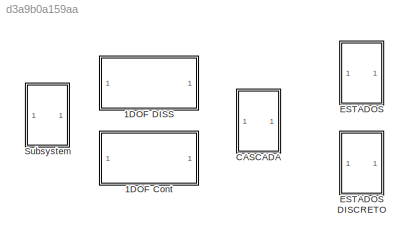
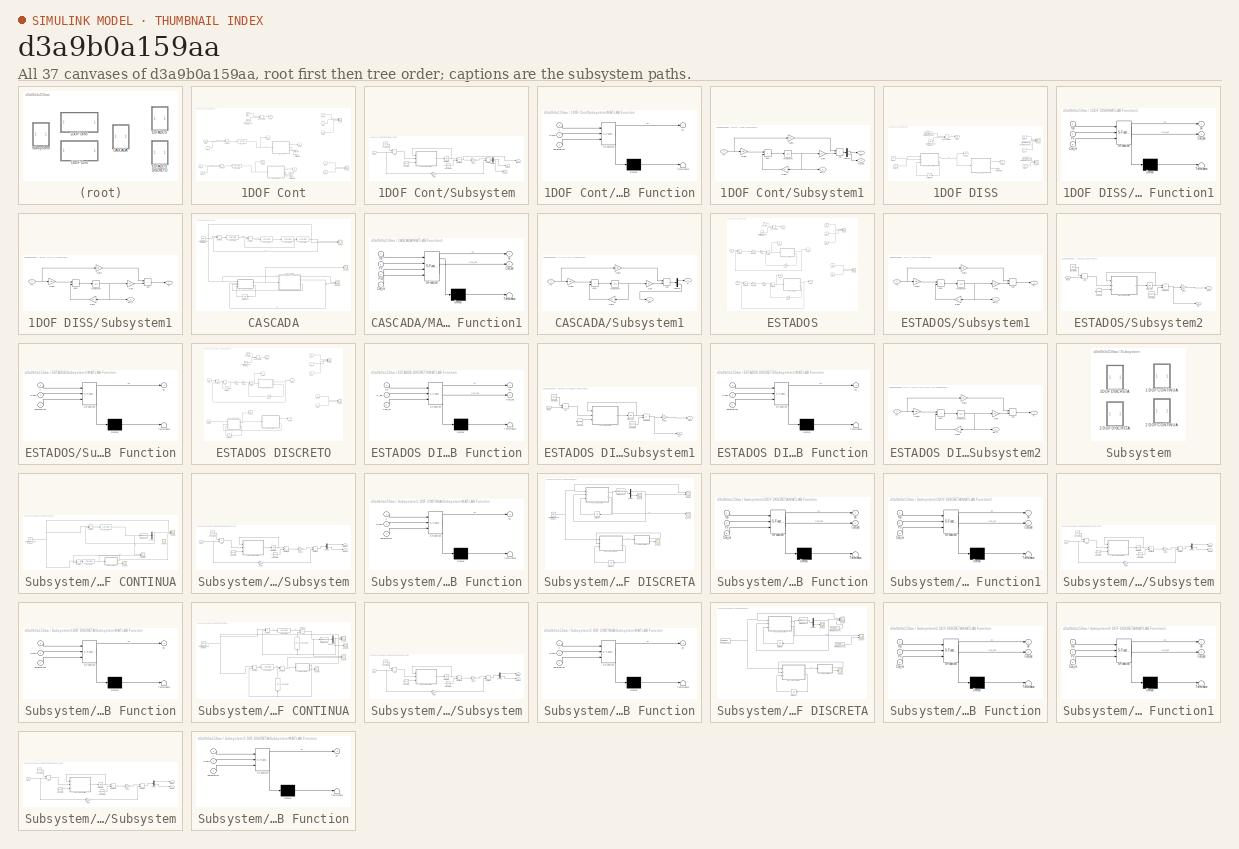
[diagram: thumbnail index - all 37 canvases of the model, root first then tree order]
MODEL slx_d3a9b0a159aa
KIND model
CONFIG AbsTol = auto
CONFIG EnableMultiTasking = off
CONFIG FixedStep = auto
CONFIG MaxStep = auto
CONFIG MinStep = auto
CONFIG RelTol = 1e-3
CONFIG SampleTimeConstraint = Unconstrained
CONFIG SolverName = ode45
CONFIG StartTime = 0.0
CONFIG StopTime = 60
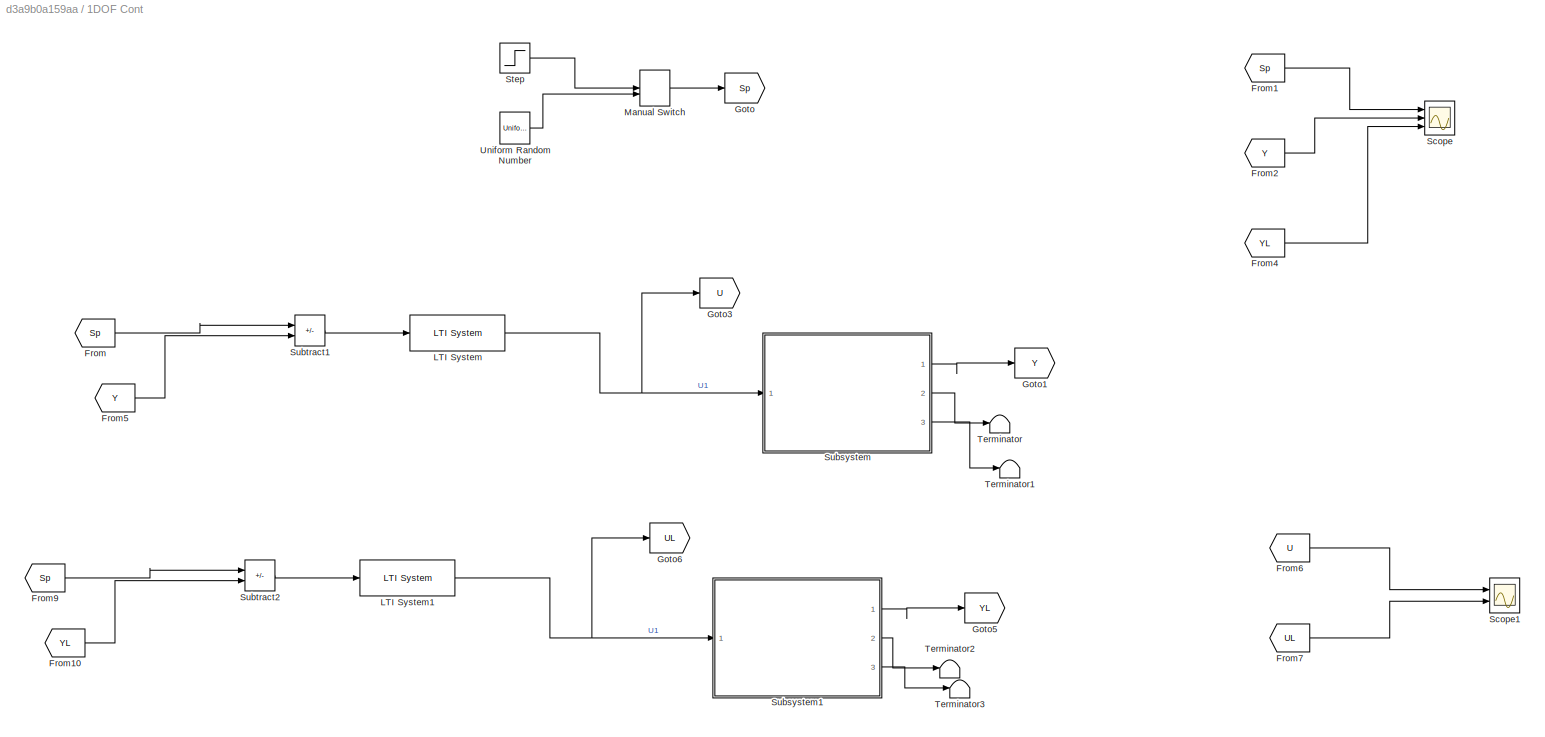
BLOCK [SubSystem] 1DOF Cont
  Commented = on
  Ports = []
  RequestExecContextInheritance = off
BLOCK [From] 1DOF Cont/From
  GotoTag = Sp
BLOCK [From] 1DOF Cont/From1
  GotoTag = Sp
BLOCK [From] 1DOF Cont/From10
  GotoTag = YL
BLOCK [From] 1DOF Cont/From2
  GotoTag = Y
BLOCK [From] 1DOF Cont/From4
  GotoTag = YL
BLOCK [From] 1DOF Cont/From5
  GotoTag = Y
BLOCK [From] 1DOF Cont/From6
  GotoTag = U
BLOCK [From] 1DOF Cont/From7
  GotoTag = UL
BLOCK [From] 1DOF Cont/From9
  GotoTag = Sp
BLOCK [Goto] 1DOF Cont/Goto
  GotoTag = Sp
BLOCK [Goto] 1DOF Cont/Goto1
  GotoTag = Y
BLOCK [Goto] 1DOF Cont/Goto3
  GotoTag = U
BLOCK [Goto] 1DOF Cont/Goto5
  GotoTag = YL
BLOCK [Goto] 1DOF Cont/Goto6
  GotoTag = UL
BLOCK [Reference] 1DOF Cont/LTI System  REF=cstblocks/LTI System
  Ports = [1, 1]
  SourceBlock = cstblocks/LTI System
  SourceProductBaseCode = CT
  SourceType = LTI Block
BLOCK [Reference] 1DOF Cont/LTI System1  REF=cstblocks/LTI System
  Ports = [1, 1]
  SourceBlock = cstblocks/LTI System
  SourceProductBaseCode = CT
  SourceType = LTI Block
BLOCK [ManualSwitch] 1DOF Cont/Manual Switch
  CurrentSetting = 0
BLOCK [Scope] 1DOF Cont/Scope
  Floating = off
  NumInputPorts = 3
  Ports = [3]
  ScopeSpecificationString = Simulink.scopes.TimeScopeBlockCfg('CurrentConfiguration', extmgr.ConfigurationSet(extmgr.Configuration('Core','General UI',true,'FigureColor',[1 1 1]),extmgr.Configuration('Core','Source UI',true),extmgr.Configuration('Sources','WiredSimulink',true),extmgr.Configuration('Visuals','Time Domain',true,'SerializedDisplays',{struct('MinYLimReal','-1.54364','MaxYLimReal','1.56067','YLabelReal','','MinYL...<+2436ch>
BLOCK [Scope] 1DOF Cont/Scope1
  Floating = off
  NumInputPorts = 2
  Ports = [2]
  ScopeSpecificationString = Simulink.scopes.TimeScopeBlockCfg('CurrentConfiguration', extmgr.ConfigurationSet(extmgr.Configuration('Core','General UI',true,'FigureColor',[1 1 1]),extmgr.Configuration('Core','Source UI',true),extmgr.Configuration('Sources','WiredSimulink',true,'DataLoggingVariableName','ScopeData1'),extmgr.Configuration('Visuals','Time Domain',true,'SerializedDisplays',{struct('MinYLimReal','-61.47582','MaxYL...<+2446ch>
BLOCK [Step] 1DOF Cont/Step
  After = 0
  SampleTime = 0
  Time = 0
BLOCK [SubSystem] 1DOF Cont/Subsystem
  Ports = [1, 3]
  RequestExecContextInheritance = off
BLOCK [Sum] 1DOF Cont/Subsystem/Add
  IconShape = rectangular
  Ports = [2, 1]
BLOCK [Constant] 1DOF Cont/Subsystem/Constant
  Value = [Ro, Lo, Kio, Kvo, Jmo, Jlo, Bmo, Blo, no, go, do, mo]
BLOCK [Constant] 1DOF Cont/Subsystem/Constant1
  Value = Vin0
BLOCK [Constant] 1DOF Cont/Subsystem/Constant2
  Value = [X10; X20; X30]
BLOCK [Demux] 1DOF Cont/Subsystem/Demux
  Outputs = 2
  Ports = [1, 2]
BLOCK [Gain] 1DOF Cont/Subsystem/Gain
  Gain = DL
  Multiplication = Matrix(K*u)
BLOCK [Gain] 1DOF Cont/Subsystem/Gain1
  Gain = CL
  Multiplication = Matrix(K*u)
BLOCK [Inport] 1DOF Cont/Subsystem/Input
BLOCK [Integrator] 1DOF Cont/Subsystem/Integrator
  InitialCondition = [X10; X20; X30]
  Ports = [1, 1]
BLOCK [SubSystem] 1DOF Cont/Subsystem/MATLAB Function
  ErrorFcn = Stateflow.Translate.translate
  PermitHierarchicalResolution = ExplicitOnly
  Ports = [3, 1]
  RequestExecContextInheritance = off
  SFBlockType = MATLAB Function
  TreatAsAtomicUnit = on
BLOCK [Demux] 1DOF Cont/Subsystem/MATLAB Function/ Demux 
  Outputs = 1
  Ports = [1, 1]
BLOCK [S-Function] 1DOF Cont/Subsystem/MATLAB Function/ SFunction 
  EnableBusSupport = on
  FunctionName = sf_sfun
  PortCounts = [3 2]
  Ports = [3, 2]
  SFcnIsStateOwnerBlock = off
  SFunctionDeploymentMode = off
  Tag = Stateflow S-Function 13
BLOCK [Terminator] 1DOF Cont/Subsystem/MATLAB Function/ Terminator 
BLOCK [Inport] 1DOF Cont/Subsystem/MATLAB Function/PWM
  Port = 2
BLOCK [Outport] 1DOF Cont/Subsystem/MATLAB Function/dx
BLOCK [Inport] 1DOF Cont/Subsystem/MATLAB Function/parametros
  Port = 3
BLOCK [Inport] 1DOF Cont/Subsystem/MATLAB Function/x
BLOCK [Outport] 1DOF Cont/Subsystem/Output
BLOCK [Outport] 1DOF Cont/Subsystem/Output1
  Port = 2
BLOCK [Outport] 1DOF Cont/Subsystem/Output2
  Port = 3
BLOCK [Sum] 1DOF Cont/Subsystem/Subtract
  IconShape = rectangular
  Ports = [2, 1]
BLOCK [Sum] 1DOF Cont/Subsystem/Subtract1
  IconShape = rectangular
  Inputs = +-
  Ports = [2, 1]
BLOCK [SubSystem] 1DOF Cont/Subsystem1
  Ports = [1, 3]
  RequestExecContextInheritance = off
BLOCK [Sum] 1DOF Cont/Subsystem1/Add
  IconShape = rectangular
  Ports = [2, 1]
BLOCK [Sum] 1DOF Cont/Subsystem1/Add1
  IconShape = rectangular
  Ports = [2, 1]
BLOCK [Demux] 1DOF Cont/Subsystem1/Demux
  Outputs = 2
  Ports = [1, 2]
BLOCK [Outport] 1DOF Cont/Subsystem1/Est_L
  Port = 2
BLOCK [Gain] 1DOF Cont/Subsystem1/Gain
  Gain = CL
  Multiplication = Matrix(K*u)
BLOCK [Gain] 1DOF Cont/Subsystem1/Gain1
  Gain = AL
  Multiplication = Matrix(K*u)
  NameLocation = top
BLOCK [Gain] 1DOF Cont/Subsystem1/Gain2
  Gain = DL
  Multiplication = Matrix(K*u)
BLOCK [Gain] 1DOF Cont/Subsystem1/Gain3
  Gain = BL
  Multiplication = Matrix(K*u)
BLOCK [Inport] 1DOF Cont/Subsystem1/In1
BLOCK [Integrator] 1DOF Cont/Subsystem1/Integrator
  Ports = [1, 1]
BLOCK [Outport] 1DOF Cont/Subsystem1/Output
  Port = 3
BLOCK [Outport] 1DOF Cont/Subsystem1/YL
BLOCK [Sum] 1DOF Cont/Subtract1
  IconShape = rectangular
  Inputs = +-
  Ports = [2, 1]
BLOCK [Sum] 1DOF Cont/Subtract2
  IconShape = rectangular
  Inputs = +-
  Ports = [2, 1]
BLOCK [Terminator] 1DOF Cont/Terminator
BLOCK [Terminator] 1DOF Cont/Terminator1
BLOCK [Terminator] 1DOF Cont/Terminator2
BLOCK [Terminator] 1DOF Cont/Terminator3
BLOCK [UniformRandomNumber] 1DOF Cont/Uniform Random Number
  Maximum = 40*(pi/180)
  Minimum = -40*(pi/180)
  SampleTime = 8
BLOCK [SubSystem] 1DOF DISS
  Commented = on
  Ports = []
  RequestExecContextInheritance = off
BLOCK [FromWorkspace] 1DOF DISS/From Workspace
  VariableName = [t' SP]
BLOCK [FromWorkspace] 1DOF DISS/From Workspace1
  VariableName = [t' theta]
BLOCK [FromWorkspace] 1DOF DISS/From Workspace2
  VariableName = [t' pwm]
BLOCK [From] 1DOF DISS/From1
  GotoTag = Sp
BLOCK [From] 1DOF DISS/From10
  GotoTag = YL
BLOCK [From] 1DOF DISS/From4
  GotoTag = YL
BLOCK [From] 1DOF DISS/From7
  GotoTag = UL
BLOCK [From] 1DOF DISS/From9
  GotoTag = Sp
BLOCK [Goto] 1DOF DISS/Goto
  GotoTag = Sp
BLOCK [Goto] 1DOF DISS/Goto5
  GotoTag = YL
BLOCK [Goto] 1DOF DISS/Goto6
  GotoTag = UL
BLOCK [SubSystem] 1DOF DISS/MATLAB Function1
  ErrorFcn = Stateflow.Translate.translate
  PermitHierarchicalResolution = ExplicitOnly
  Ports = [3, 2]
  RequestExecContextInheritance = off
  SFBlockType = MATLAB Function
  TreatAsAtomicUnit = on
BLOCK [Demux] 1DOF DISS/MATLAB Function1/ Demux 
  Outputs = 1
  Ports = [1, 1]
BLOCK [S-Function] 1DOF DISS/MATLAB Function1/ SFunction 
  EnableBusSupport = on
  FunctionName = sf_sfun
  PortCounts = [3 3]
  Ports = [3, 3]
  SFcnIsStateOwnerBlock = off
  SFunctionDeploymentMode = off
  Tag = Stateflow S-Function 16
BLOCK [Terminator] 1DOF DISS/MATLAB Function1/ Terminator 
BLOCK [Inport] 1DOF DISS/MATLAB Function1/Con_ini
  Port = 3
BLOCK [Outport] 1DOF DISS/MATLAB Function1/Con_out
  Port = 2
BLOCK [Inport] 1DOF DISS/MATLAB Function1/Pv
  Port = 2
BLOCK [Inport] 1DOF DISS/MATLAB Function1/Sp
BLOCK [Outport] 1DOF DISS/MATLAB Function1/us
BLOCK [ManualSwitch] 1DOF DISS/Manual Switch
BLOCK [Scope] 1DOF DISS/Scope
  Floating = off
  NumInputPorts = 3
  Ports = [3]
  ScopeSpecificationString = Simulink.scopes.TimeScopeBlockCfg('CurrentConfiguration', extmgr.ConfigurationSet(extmgr.Configuration('Core','General UI',true,'FigureColor',[1 1 1]),extmgr.Configuration('Core','Source UI',true),extmgr.Configuration('Sources','WiredSimulink',true),extmgr.Configuration('Visuals','Time Domain',true,'SerializedDisplays',{struct('MinYLimReal','-1.77923','MaxYLimReal','1.59461','YLabelReal','','MinYL...<+2436ch>
BLOCK [Scope] 1DOF DISS/Scope1
  Floating = off
  NumInputPorts = 2
  Ports = [2]
  ScopeSpecificationString = Simulink.scopes.TimeScopeBlockCfg('CurrentConfiguration', extmgr.ConfigurationSet(extmgr.Configuration('Core','General UI',true,'FigureColor',[1 1 1]),extmgr.Configuration('Core','Source UI',true),extmgr.Configuration('Sources','WiredSimulink',true,'DataLoggingVariableName','ScopeData1'),extmgr.Configuration('Visuals','Time Domain',true,'SerializedDisplays',{struct('MinYLimReal','-62.9673','MaxYLi...<+2455ch>
BLOCK [SubSystem] 1DOF DISS/Subsystem1
  Ports = [1, 2]
  RequestExecContextInheritance = off
BLOCK [Sum] 1DOF DISS/Subsystem1/Add
  IconShape = rectangular
  Ports = [2, 1]
BLOCK [Sum] 1DOF DISS/Subsystem1/Add1
  IconShape = rectangular
  Ports = [2, 1]
BLOCK [Outport] 1DOF DISS/Subsystem1/Est_L
  Port = 2
BLOCK [Gain] 1DOF DISS/Subsystem1/Gain
  Gain = CL
  Multiplication = Matrix(K*u)
BLOCK [Gain] 1DOF DISS/Subsystem1/Gain1
  Gain = AL
  Multiplication = Matrix(K*u)
  NameLocation = top
BLOCK [Gain] 1DOF DISS/Subsystem1/Gain2
  Gain = DL
  Multiplication = Matrix(K*u)
BLOCK [Gain] 1DOF DISS/Subsystem1/Gain3
  Gain = BL
  Multiplication = Matrix(K*u)
BLOCK [Inport] 1DOF DISS/Subsystem1/In1
BLOCK [Integrator] 1DOF DISS/Subsystem1/Integrator
  Ports = [1, 1]
BLOCK [Outport] 1DOF DISS/Subsystem1/YL
BLOCK [Terminator] 1DOF DISS/Terminator2
BLOCK [UniformRandomNumber] 1DOF DISS/Uniform Random Number
  Maximum = 40*(pi/180)
  Minimum = -40*(pi/180)
  SampleTime = 8
BLOCK [UnitDelay] 1DOF DISS/Unit Delay1
  HasFrameUpgradeWarning = on
  InitialCondition = zeros(4,1)
  NameLocation = top
  SampleTime = Tm
BLOCK [SubSystem] CASCADA
  Ports = []
  RequestExecContextInheritance = off
BLOCK [Reference] CASCADA/LTI System  REF=cstblocks/LTI System
  Ports = [1, 1]
  SourceBlock = cstblocks/LTI System
  SourceProductBaseCode = CT
  SourceType = LTI Block
BLOCK [Reference] CASCADA/LTI System1  REF=cstblocks/LTI System
  Ports = [1, 1]
  SourceBlock = cstblocks/LTI System
  SourceProductBaseCode = CT
  SourceType = LTI Block
BLOCK [Reference] CASCADA/LTI System2  REF=cstblocks/LTI System
  Ports = [1, 1]
  SourceBlock = cstblocks/LTI System
  SourceProductBaseCode = CT
  SourceType = LTI Block
BLOCK [Reference] CASCADA/LTI System3  REF=cstblocks/LTI System
  Ports = [1, 1]
  SourceBlock = cstblocks/LTI System
  SourceProductBaseCode = CT
  SourceType = LTI Block
BLOCK [SubSystem] CASCADA/MATLAB Function1
  Commented = on
  ErrorFcn = Stateflow.Translate.translate
  PermitHierarchicalResolution = ExplicitOnly
  Ports = [4, 2]
  RequestExecContextInheritance = off
  SFBlockType = MATLAB Function
  TreatAsAtomicUnit = on
BLOCK [Demux] CASCADA/MATLAB Function1/ Demux 
  Outputs = 1
  Ports = [1, 1]
BLOCK [S-Function] CASCADA/MATLAB Function1/ SFunction 
  EnableBusSupport = on
  FunctionName = sf_sfun
  PortCounts = [4 3]
  Ports = [4, 3]
  SFcnIsStateOwnerBlock = off
  SFunctionDeploymentMode = off
  Tag = Stateflow S-Function 9
BLOCK [Terminator] CASCADA/MATLAB Function1/ Terminator 
BLOCK [Inport] CASCADA/MATLAB Function1/Con_ini
  Port = 4
BLOCK [Outport] CASCADA/MATLAB Function1/Con_out
  Port = 2
BLOCK [Inport] CASCADA/MATLAB Function1/Pv
  Port = 2
BLOCK [Inport] CASCADA/MATLAB Function1/Pv1
  Port = 3
BLOCK [Inport] CASCADA/MATLAB Function1/Sp
BLOCK [Outport] CASCADA/MATLAB Function1/u2
BLOCK [Scope] CASCADA/Scope
  Floating = off
  NumInputPorts = 2
  Ports = [2]
  ScopeSpecificationString = Simulink.scopes.TimeScopeBlockCfg('CurrentConfiguration', extmgr.ConfigurationSet(extmgr.Configuration('Core','General UI',true,'FigureColor',[1 1 1]),extmgr.Configuration('Core','Source UI',true),extmgr.Configuration('Sources','WiredSimulink',true,'DataLoggingVariableName','ScopeData2'),extmgr.Configuration('Visuals','Time Domain',true,'SerializedDisplays',{struct('MinYLimReal','-1.40287','MaxYLi...<+2389ch>
BLOCK [Scope] CASCADA/Scope1
  Commented = on
  Floating = off
  NumInputPorts = 2
  Ports = [2]
  ScopeSpecificationString = Simulink.scopes.TimeScopeBlockCfg('CurrentConfiguration', extmgr.ConfigurationSet(extmgr.Configuration('Core','General UI',true),extmgr.Configuration('Core','Source UI',true),extmgr.Configuration('Sources','WiredSimulink',true,'DataLoggingVariableName','ScopeData1'),extmgr.Configuration('Visuals','Time Domain',true,'SerializedDisplays',{struct('MinYLimReal','-8398796905370769596755999107055616000....<+1725ch>
BLOCK [Scope] CASCADA/Scope3
  Commented = on
  Floating = off
  NumInputPorts = 1
  Ports = [1]
  ScopeSpecificationString = Simulink.scopes.TimeScopeBlockCfg('CurrentConfiguration', extmgr.ConfigurationSet(extmgr.Configuration('Core','General UI',true),extmgr.Configuration('Core','Source UI',true),extmgr.Configuration('Sources','WiredSimulink',true,'DataLoggingVariableName','ScopeData2'),extmgr.Configuration('Visuals','Time Domain',true,'SerializedDisplays',{struct('MinYLimReal','-26066.76319','MaxYLimReal','6546.97857...<+1406ch>
BLOCK [SubSystem] CASCADA/Subsystem1
  Commented = on
  Ports = [1, 2]
  RequestExecContextInheritance = off
BLOCK [Sum] CASCADA/Subsystem1/Add
  IconShape = rectangular
  Ports = [2, 1]
BLOCK [Sum] CASCADA/Subsystem1/Add1
  IconShape = rectangular
  Ports = [2, 1]
BLOCK [Demux] CASCADA/Subsystem1/Demux
  Outputs = 2
  Ports = [1, 2]
BLOCK [Gain] CASCADA/Subsystem1/Gain
  Gain = CL
  Multiplication = Matrix(K*u)
BLOCK [Gain] CASCADA/Subsystem1/Gain1
  Gain = AL
  Multiplication = Matrix(K*u)
  NameLocation = top
BLOCK [Gain] CASCADA/Subsystem1/Gain2
  Gain = DL
  Multiplication = Matrix(K*u)
BLOCK [Gain] CASCADA/Subsystem1/Gain3
  Gain = BL
  Multiplication = Matrix(K*u)
BLOCK [Inport] CASCADA/Subsystem1/In1
BLOCK [Integrator] CASCADA/Subsystem1/Integrator
  Ports = [1, 1]
BLOCK [Outport] CASCADA/Subsystem1/WL
  Port = 2
BLOCK [Outport] CASCADA/Subsystem1/YL
BLOCK [Sum] CASCADA/Subtract
  IconShape = rectangular
  Inputs = +-
  Ports = [2, 1]
BLOCK [Sum] CASCADA/Subtract1
  IconShape = rectangular
  Inputs = +-
  Ports = [2, 1]
BLOCK [UniformRandomNumber] CASCADA/Uniform Random Number
  Maximum = 65*(pi/180)
  Minimum = -65*(pi/180)
  SampleTime = 8
BLOCK [UnitDelay] CASCADA/Unit Delay1
  Commented = on
  HasFrameUpgradeWarning = on
  InitialCondition = zeros(8,1)
  NameLocation = top
  SampleTime = Tm
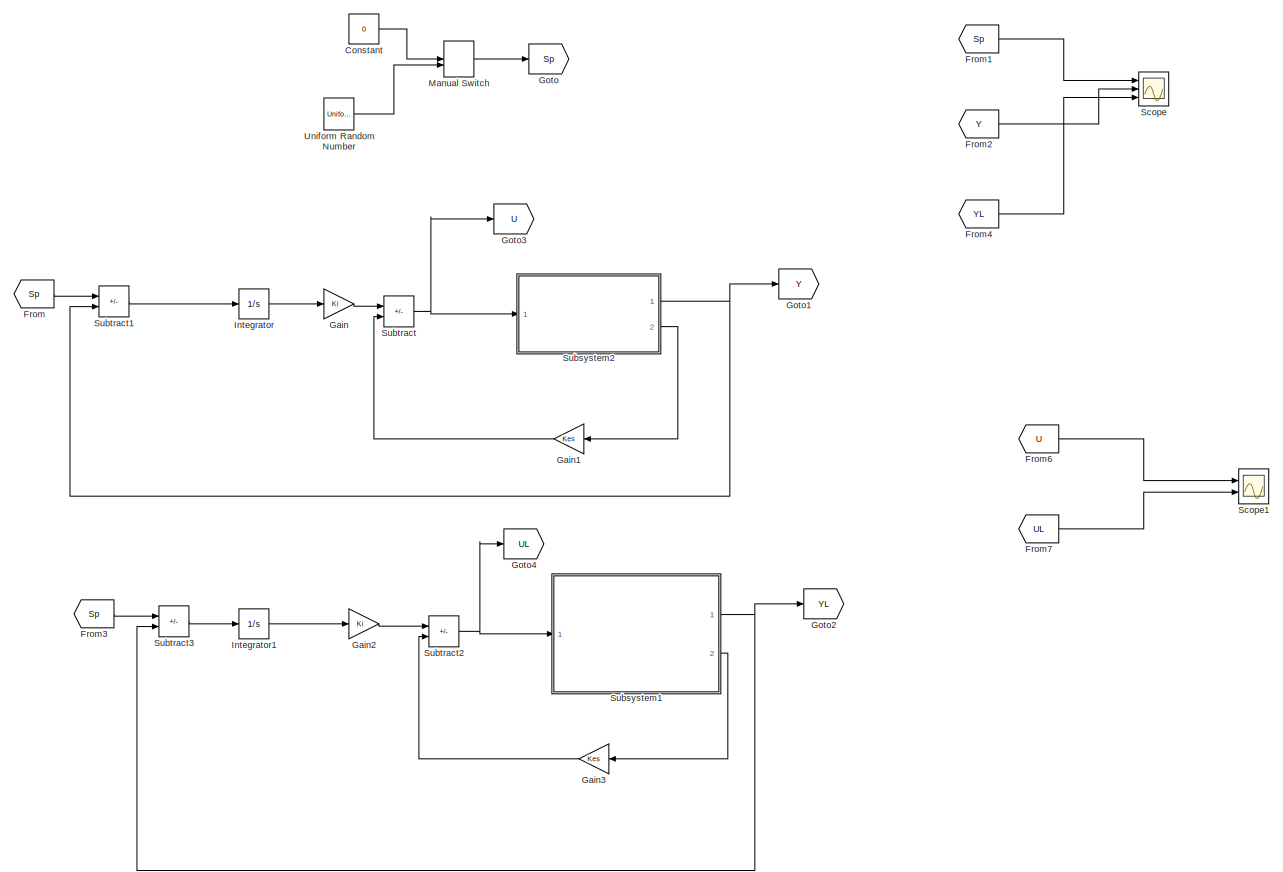
[diagram: ESTADOS - part 1/1, most of the canvas]
BLOCK [SubSystem] ESTADOS
  Commented = on
  Ports = []
  RequestExecContextInheritance = off
BLOCK [SubSystem] ESTADOS DISCRETO
  Commented = on
  Ports = []
  RequestExecContextInheritance = off
BLOCK [Sum] ESTADOS DISCRETO/Add
  IconShape = rectangular
  Ports = [2, 1]
BLOCK [Constant] ESTADOS DISCRETO/Constant
  Value = 60*(pi/180)
BLOCK [From] ESTADOS DISCRETO/From
  GotoTag = Sp
BLOCK [From] ESTADOS DISCRETO/From1
  GotoTag = Sp
BLOCK [From] ESTADOS DISCRETO/From2
  GotoTag = Y
BLOCK [From] ESTADOS DISCRETO/From3
  GotoTag = Sp
BLOCK [From] ESTADOS DISCRETO/From4
  GotoTag = YL
BLOCK [From] ESTADOS DISCRETO/From6
  GotoTag = U
BLOCK [From] ESTADOS DISCRETO/From7
  GotoTag = UL
BLOCK [Gain] ESTADOS DISCRETO/Gain
  Gain = Ki
  Multiplication = Matrix(K*u)
BLOCK [Gain] ESTADOS DISCRETO/Gain1
  Gain = Kes
  Multiplication = Matrix(K*u)
  NameLocation = top
BLOCK [Gain] ESTADOS DISCRETO/Gain4
  Gain = Tm
BLOCK [Goto] ESTADOS DISCRETO/Goto
  GotoTag = Sp
BLOCK [Goto] ESTADOS DISCRETO/Goto1
  GotoTag = Y
BLOCK [Goto] ESTADOS DISCRETO/Goto3
  GotoTag = U
BLOCK [Goto] ESTADOS DISCRETO/Goto5
  GotoTag = YL
BLOCK [Goto] ESTADOS DISCRETO/Goto6
  GotoTag = UL
BLOCK [SubSystem] ESTADOS DISCRETO/MATLAB Function
  ErrorFcn = Stateflow.Translate.translate
  PermitHierarchicalResolution = ExplicitOnly
  Ports = [3, 2]
  RequestExecContextInheritance = off
  SFBlockType = MATLAB Function
  TreatAsAtomicUnit = on
BLOCK [Demux] ESTADOS DISCRETO/MATLAB Function/ Demux 
  Outputs = 1
  Ports = [1, 1]
BLOCK [S-Function] ESTADOS DISCRETO/MATLAB Function/ SFunction 
  EnableBusSupport = on
  FunctionName = sf_sfun
  PortCounts = [3 3]
  Ports = [3, 3]
  SFcnIsStateOwnerBlock = off
  SFunctionDeploymentMode = off
  Tag = Stateflow S-Function 15
BLOCK [Terminator] ESTADOS DISCRETO/MATLAB Function/ Terminator 
BLOCK [Inport] ESTADOS DISCRETO/MATLAB Function/Con_ini
  Port = 3
BLOCK [Outport] ESTADOS DISCRETO/MATLAB Function/Con_out
  Port = 2
BLOCK [Inport] ESTADOS DISCRETO/MATLAB Function/Sp
BLOCK [Inport] ESTADOS DISCRETO/MATLAB Function/X_est
  Port = 2
BLOCK [Outport] ESTADOS DISCRETO/MATLAB Function/us
BLOCK [ManualSwitch] ESTADOS DISCRETO/Manual Switch
BLOCK [Scope] ESTADOS DISCRETO/Scope
  Floating = off
  NumInputPorts = 3
  Ports = [3]
  ScopeSpecificationString = Simulink.scopes.TimeScopeBlockCfg('CurrentConfiguration', extmgr.ConfigurationSet(extmgr.Configuration('Core','General UI',true,'FigureColor',[1 1 1]),extmgr.Configuration('Core','Source UI',true),extmgr.Configuration('Sources','WiredSimulink',true,'DataLoggingVariableName','ScopeData1'),extmgr.Configuration('Visuals','Time Domain',true,'SerializedDisplays',{struct('MinYLimReal','-0.13716','MaxYLi...<+2454ch>
BLOCK [Scope] ESTADOS DISCRETO/Scope1
  Floating = off
  NumInputPorts = 2
  Ports = [2]
  ScopeSpecificationString = Simulink.scopes.TimeScopeBlockCfg('CurrentConfiguration', extmgr.ConfigurationSet(extmgr.Configuration('Core','General UI',true,'FigureColor',[1 1 1]),extmgr.Configuration('Core','Source UI',true),extmgr.Configuration('Sources','WiredSimulink',true,'DataLoggingVariableName','ScopeData2'),extmgr.Configuration('Visuals','Time Domain',true,'SerializedDisplays',{struct('MinYLimReal','-0.63863','MaxYLi...<+2444ch>
BLOCK [SubSystem] ESTADOS DISCRETO/Subsystem1
  Ports = [1, 2]
  RequestExecContextInheritance = off
BLOCK [Sum] ESTADOS DISCRETO/Subsystem1/Add
  IconShape = rectangular
  Ports = [2, 1]
BLOCK [Constant] ESTADOS DISCRETO/Subsystem1/Constant
  Value = [Ro,Lo,Kio, Kvo, Jmo, Jlo, Bmo, Blo, no, go, do, mo]
BLOCK [Constant] ESTADOS DISCRETO/Subsystem1/Constant1
  Value = Vin0
BLOCK [Constant] ESTADOS DISCRETO/Subsystem1/Constant2
  Value = [X10; X20]
BLOCK [Outport] ESTADOS DISCRETO/Subsystem1/Est
  Port = 2
BLOCK [Gain] ESTADOS DISCRETO/Subsystem1/Gain1
  Gain = CL
  Multiplication = Matrix(K*u)
BLOCK [Inport] ESTADOS DISCRETO/Subsystem1/Input
BLOCK [Integrator] ESTADOS DISCRETO/Subsystem1/Integrator
  InitialCondition = [X10; X20]
  Ports = [1, 1]
BLOCK [SubSystem] ESTADOS DISCRETO/Subsystem1/MATLAB Function
  ErrorFcn = Stateflow.Translate.translate
  PermitHierarchicalResolution = ExplicitOnly
  Ports = [3, 1]
  RequestExecContextInheritance = off
  SFBlockType = MATLAB Function
  TreatAsAtomicUnit = on
BLOCK [Demux] ESTADOS DISCRETO/Subsystem1/MATLAB Function/ Demux 
  Outputs = 1
  Ports = [1, 1]
BLOCK [S-Function] ESTADOS DISCRETO/Subsystem1/MATLAB Function/ SFunction 
  EnableBusSupport = on
  FunctionName = sf_sfun
  PortCounts = [3 2]
  Ports = [3, 2]
  SFcnIsStateOwnerBlock = off
  SFunctionDeploymentMode = off
  Tag = Stateflow S-Function 12
BLOCK [Terminator] ESTADOS DISCRETO/Subsystem1/MATLAB Function/ Terminator 
BLOCK [Inport] ESTADOS DISCRETO/Subsystem1/MATLAB Function/PWM
  Port = 2
BLOCK [Outport] ESTADOS DISCRETO/Subsystem1/MATLAB Function/dx
BLOCK [Inport] ESTADOS DISCRETO/Subsystem1/MATLAB Function/parametros
  Port = 3
BLOCK [Inport] ESTADOS DISCRETO/Subsystem1/MATLAB Function/x
BLOCK [Outport] ESTADOS DISCRETO/Subsystem1/Output
BLOCK [Sum] ESTADOS DISCRETO/Subsystem1/Subtract1
  IconShape = rectangular
  Inputs = +-
  Ports = [2, 1]
BLOCK [SubSystem] ESTADOS DISCRETO/Subsystem2
  Ports = [1, 2]
  RequestExecContextInheritance = off
BLOCK [Sum] ESTADOS DISCRETO/Subsystem2/Add
  IconShape = rectangular
  Ports = [2, 1]
BLOCK [Sum] ESTADOS DISCRETO/Subsystem2/Add1
  IconShape = rectangular
  Ports = [2, 1]
BLOCK [Outport] ESTADOS DISCRETO/Subsystem2/Est_L
  Port = 2
BLOCK [Gain] ESTADOS DISCRETO/Subsystem2/Gain
  Gain = CL
  Multiplication = Matrix(K*u)
BLOCK [Gain] ESTADOS DISCRETO/Subsystem2/Gain1
  Gain = AL
  Multiplication = Matrix(K*u)
  NameLocation = top
BLOCK [Gain] ESTADOS DISCRETO/Subsystem2/Gain2
  Gain = DL
  Multiplication = Matrix(K*u)
BLOCK [Gain] ESTADOS DISCRETO/Subsystem2/Gain3
  Gain = BL
  Multiplication = Matrix(K*u)
BLOCK [Inport] ESTADOS DISCRETO/Subsystem2/In1
BLOCK [Integrator] ESTADOS DISCRETO/Subsystem2/Integrator
  Ports = [1, 1]
BLOCK [Outport] ESTADOS DISCRETO/Subsystem2/YL
BLOCK [Sum] ESTADOS DISCRETO/Subtract
  IconShape = rectangular
  Inputs = +-
  Ports = [2, 1]
BLOCK [Sum] ESTADOS DISCRETO/Subtract1
  IconShape = rectangular
  Inputs = +-
  Ports = [2, 1]
BLOCK [UniformRandomNumber] ESTADOS DISCRETO/Uniform Random Number
  Maximum = 60*(pi/180)
  Minimum = -60*(pi/180)
  SampleTime = 8
BLOCK [UnitDelay] ESTADOS DISCRETO/Unit Delay
  HasFrameUpgradeWarning = on
  NameLocation = top
  SampleTime = Tm
BLOCK [UnitDelay] ESTADOS DISCRETO/Unit Delay2
  HasFrameUpgradeWarning = on
  InitialCondition = zeros(1,2)
  NameLocation = top
  SampleTime = Tm
BLOCK [Constant] ESTADOS/Constant
  Value = 0
BLOCK [From] ESTADOS/From
  GotoTag = Sp
BLOCK [From] ESTADOS/From1
  GotoTag = Sp
BLOCK [From] ESTADOS/From2
  GotoTag = Y
BLOCK [From] ESTADOS/From3
  GotoTag = Sp
BLOCK [From] ESTADOS/From4
  GotoTag = YL
BLOCK [From] ESTADOS/From6
  GotoTag = U
BLOCK [From] ESTADOS/From7
  GotoTag = UL
BLOCK [Gain] ESTADOS/Gain
  Gain = Ki
  Multiplication = Matrix(K*u)
BLOCK [Gain] ESTADOS/Gain1
  Gain = Kes
  Multiplication = Matrix(K*u)
  NameLocation = top
BLOCK [Gain] ESTADOS/Gain2
  Gain = Ki
  Multiplication = Matrix(K*u)
BLOCK [Gain] ESTADOS/Gain3
  Gain = Kes
  Multiplication = Matrix(K*u)
  NameLocation = top
BLOCK [Goto] ESTADOS/Goto
  GotoTag = Sp
BLOCK [Goto] ESTADOS/Goto1
  GotoTag = Y
BLOCK [Goto] ESTADOS/Goto2
  GotoTag = YL
BLOCK [Goto] ESTADOS/Goto3
  GotoTag = U
BLOCK [Goto] ESTADOS/Goto4
  GotoTag = UL
BLOCK [Integrator] ESTADOS/Integrator
  Ports = [1, 1]
BLOCK [Integrator] ESTADOS/Integrator1
  Ports = [1, 1]
BLOCK [ManualSwitch] ESTADOS/Manual Switch
  CurrentSetting = 0
BLOCK [Scope] ESTADOS/Scope
  Floating = off
  NumInputPorts = 3
  Ports = [3]
  ScopeSpecificationString = Simulink.scopes.TimeScopeBlockCfg('CurrentConfiguration', extmgr.ConfigurationSet(extmgr.Configuration('Core','General UI',true,'FigureColor',[1 1 1]),extmgr.Configuration('Core','Source UI',true),extmgr.Configuration('Sources','WiredSimulink',true),extmgr.Configuration('Visuals','Time Domain',true,'SerializedDisplays',{struct('MinYLimReal','-1.4193','MaxYLimReal','1.38047','YLabelReal','','MinYLi...<+2410ch>
BLOCK [Scope] ESTADOS/Scope1
  Floating = off
  NumInputPorts = 2
  Ports = [2]
  ScopeSpecificationString = Simulink.scopes.TimeScopeBlockCfg('CurrentConfiguration', extmgr.ConfigurationSet(extmgr.Configuration('Core','General UI',true,'FigureColor',[1 1 1]),extmgr.Configuration('Core','Source UI',true),extmgr.Configuration('Sources','WiredSimulink',true,'DataLoggingVariableName','ScopeData2'),extmgr.Configuration('Visuals','Time Domain',true,'SerializedDisplays',{struct('MinYLimReal','-22.17901','MaxYL...<+2455ch>
BLOCK [SubSystem] ESTADOS/Subsystem1
  Ports = [1, 2]
  RequestExecContextInheritance = off
BLOCK [Sum] ESTADOS/Subsystem1/Add
  IconShape = rectangular
  Ports = [2, 1]
BLOCK [Sum] ESTADOS/Subsystem1/Add1
  IconShape = rectangular
  Ports = [2, 1]
BLOCK [Outport] ESTADOS/Subsystem1/Est_L
  Port = 2
BLOCK [Gain] ESTADOS/Subsystem1/Gain
  Gain = CL
  Multiplication = Matrix(K*u)
BLOCK [Gain] ESTADOS/Subsystem1/Gain1
  Gain = AL
  Multiplication = Matrix(K*u)
  NameLocation = top
BLOCK [Gain] ESTADOS/Subsystem1/Gain2
  Gain = DL
  Multiplication = Matrix(K*u)
BLOCK [Gain] ESTADOS/Subsystem1/Gain3
  Gain = BL
  Multiplication = Matrix(K*u)
BLOCK [Inport] ESTADOS/Subsystem1/In1
BLOCK [Integrator] ESTADOS/Subsystem1/Integrator
  Ports = [1, 1]
BLOCK [Outport] ESTADOS/Subsystem1/YL
BLOCK [SubSystem] ESTADOS/Subsystem2
  Ports = [1, 2]
  RequestExecContextInheritance = off
BLOCK [Sum] ESTADOS/Subsystem2/Add
  IconShape = rectangular
  Ports = [2, 1]
BLOCK [Constant] ESTADOS/Subsystem2/Constant
  Value = [Ro,Lo,Kio, Kvo, Jmo, Jlo, Bmo, Blo, no, go, do, mo]
BLOCK [Constant] ESTADOS/Subsystem2/Constant1
  Value = Vin0
BLOCK [Constant] ESTADOS/Subsystem2/Constant2
  Value = [X10; X20]
BLOCK [Outport] ESTADOS/Subsystem2/Est
  Port = 2
BLOCK [Gain] ESTADOS/Subsystem2/Gain1
  Gain = CL
  Multiplication = Matrix(K*u)
BLOCK [Inport] ESTADOS/Subsystem2/Input
BLOCK [Integrator] ESTADOS/Subsystem2/Integrator
  InitialCondition = [X10; X20]
  Ports = [1, 1]
BLOCK [SubSystem] ESTADOS/Subsystem2/MATLAB Function
  ErrorFcn = Stateflow.Translate.translate
  PermitHierarchicalResolution = ExplicitOnly
  Ports = [3, 1]
  RequestExecContextInheritance = off
  SFBlockType = MATLAB Function
  TreatAsAtomicUnit = on
BLOCK [Demux] ESTADOS/Subsystem2/MATLAB Function/ Demux 
  Outputs = 1
  Ports = [1, 1]
BLOCK [S-Function] ESTADOS/Subsystem2/MATLAB Function/ SFunction 
  EnableBusSupport = on
  FunctionName = sf_sfun
  PortCounts = [3 2]
  Ports = [3, 2]
  SFcnIsStateOwnerBlock = off
  SFunctionDeploymentMode = off
  Tag = Stateflow S-Function 10
BLOCK [Terminator] ESTADOS/Subsystem2/MATLAB Function/ Terminator 
BLOCK [Inport] ESTADOS/Subsystem2/MATLAB Function/PWM
  Port = 2
BLOCK [Outport] ESTADOS/Subsystem2/MATLAB Function/dx
BLOCK [Inport] ESTADOS/Subsystem2/MATLAB Function/parametros
  Port = 3
BLOCK [Inport] ESTADOS/Subsystem2/MATLAB Function/x
BLOCK [Outport] ESTADOS/Subsystem2/Output
BLOCK [Sum] ESTADOS/Subsystem2/Subtract1
  IconShape = rectangular
  Inputs = +-
  Ports = [2, 1]
BLOCK [Sum] ESTADOS/Subtract
  IconShape = rectangular
  Inputs = +-
  Ports = [2, 1]
BLOCK [Sum] ESTADOS/Subtract1
  IconShape = rectangular
  Inputs = +-
  Ports = [2, 1]
BLOCK [Sum] ESTADOS/Subtract2
  IconShape = rectangular
  Inputs = +-
  Ports = [2, 1]
BLOCK [Sum] ESTADOS/Subtract3
  IconShape = rectangular
  Inputs = +-
  Ports = [2, 1]
BLOCK [UniformRandomNumber] ESTADOS/Uniform Random Number
  Maximum = 70*(pi/180)
  Minimum = -70*(pi/180)
  SampleTime = 8
BLOCK [SubSystem] Subsystem
  Ports = []
  RequestExecContextInheritance = off
BLOCK [SubSystem] Subsystem/1 DOF CONTINUA
  Commented = on
  Ports = []
  RequestExecContextInheritance = off
BLOCK [Demux] Subsystem/1 DOF CONTINUA/Demux
  Outputs = 1
  Ports = [1, 1]
BLOCK [Reference] Subsystem/1 DOF CONTINUA/LTI System  REF=cstblocks/LTI System
  Ports = [1, 1]
  SourceBlock = cstblocks/LTI System
  SourceProductBaseCode = CT
  SourceType = LTI Block
BLOCK [Reference] Subsystem/1 DOF CONTINUA/LTI System1  REF=cstblocks/LTI System
  Ports = [1, 1]
  SourceBlock = cstblocks/LTI System
  SourceProductBaseCode = CT
  SourceType = LTI Block
BLOCK [Scope] Subsystem/1 DOF CONTINUA/Scope
  Floating = off
  NumInputPorts = 3
  Ports = [3]
  ScopeSpecificationString = Simulink.scopes.TimeScopeBlockCfg('CurrentConfiguration', extmgr.ConfigurationSet(extmgr.Configuration('Core','General UI',true),extmgr.Configuration('Core','Source UI',true),extmgr.Configuration('Sources','WiredSimulink',true),extmgr.Configuration('Visuals','Time Domain',true,'SerializedDisplays',{struct('MinYLimReal','-1.54364','MaxYLimReal','1.56067','YLabelReal','','MinYLimMag','0.00000','MaxY...<+1464ch>
BLOCK [Scope] Subsystem/1 DOF CONTINUA/Scope1
  Floating = off
  NumInputPorts = 1
  Ports = [1]
  ScopeSpecificationString = Simulink.scopes.TimeScopeBlockCfg('CurrentConfiguration', extmgr.ConfigurationSet(extmgr.Configuration('Core','General UI',true),extmgr.Configuration('Core','Source UI',true),extmgr.Configuration('Sources','WiredSimulink',true,'DataLoggingVariableName','ScopeData1'),extmgr.Configuration('Visuals','Time Domain',true,'SerializedDisplays',{struct('MinYLimReal','-1.01212','MaxYLimReal','1.42183','YLab...<+1366ch>
BLOCK [Scope] Subsystem/1 DOF CONTINUA/Scope3
  Floating = off
  NumInputPorts = 1
  Ports = [1]
  ScopeSpecificationString = Simulink.scopes.TimeScopeBlockCfg('CurrentConfiguration', extmgr.ConfigurationSet(extmgr.Configuration('Core','General UI',true),extmgr.Configuration('Core','Source UI',true),extmgr.Configuration('Sources','WiredSimulink',true,'DataLoggingVariableName','ScopeData3'),extmgr.Configuration('Visuals','Time Domain',true,'SerializedDisplays',{struct('MinYLimReal','-1.99412','MaxYLimReal','4.17333','YLab...<+1370ch>
BLOCK [Scope] Subsystem/1 DOF CONTINUA/Scope4
  Floating = off
  NumInputPorts = 2
  Ports = [2]
  ScopeSpecificationString = Simulink.scopes.TimeScopeBlockCfg('CurrentConfiguration', extmgr.ConfigurationSet(extmgr.Configuration('Core','General UI',true),extmgr.Configuration('Core','Source UI',true),extmgr.Configuration('Sources','WiredSimulink',true,'DataLoggingVariableName','ScopeData1'),extmgr.Configuration('Visuals','Time Domain',true,'SerializedDisplays',{struct('MinYLimReal','-61.47545','MaxYLimReal','62.92857','YL...<+1476ch>
BLOCK [StateSpace] Subsystem/1 DOF CONTINUA/State-Space
  A = AL
  B = BL
  C = CL
  D = DL
  InitialCondition = [0;0;0]
  Ports = [1, 1]
BLOCK [SubSystem] Subsystem/1 DOF CONTINUA/Subsystem
  Ports = [1, 2]
  RequestExecContextInheritance = off
BLOCK [Sum] Subsystem/1 DOF CONTINUA/Subsystem/Add
  IconShape = rectangular
  Ports = [2, 1]
BLOCK [Constant] Subsystem/1 DOF CONTINUA/Subsystem/Constant
  Value = [Ro, Lo, Kio, Kvo, Jmo, Jlo, Bmo, Blo, no, go, do, mo]
BLOCK [Constant] Subsystem/1 DOF CONTINUA/Subsystem/Constant1
  Value = Vin0
BLOCK [Constant] Subsystem/1 DOF CONTINUA/Subsystem/Constant2
  Value = [X10; X20; X30]
BLOCK [Demux] Subsystem/1 DOF CONTINUA/Subsystem/Demux
  Outputs = 2
  Ports = [1, 2]
BLOCK [Gain] Subsystem/1 DOF CONTINUA/Subsystem/Gain
  Gain = DL
  Multiplication = Matrix(K*u)
BLOCK [Gain] Subsystem/1 DOF CONTINUA/Subsystem/Gain1
  Gain = CL
  Multiplication = Matrix(K*u)
BLOCK [Inport] Subsystem/1 DOF CONTINUA/Subsystem/Input
BLOCK [Integrator] Subsystem/1 DOF CONTINUA/Subsystem/Integrator
  InitialCondition = [X10; X20; X30]
  Ports = [1, 1]
BLOCK [SubSystem] Subsystem/1 DOF CONTINUA/Subsystem/MATLAB Function
  ErrorFcn = Stateflow.Translate.translate
  PermitHierarchicalResolution = ExplicitOnly
  Ports = [3, 1]
  RequestExecContextInheritance = off
  SFBlockType = MATLAB Function
  TreatAsAtomicUnit = on
BLOCK [Demux] Subsystem/1 DOF CONTINUA/Subsystem/MATLAB Function/ Demux 
  Outputs = 1
  Ports = [1, 1]
BLOCK [S-Function] Subsystem/1 DOF CONTINUA/Subsystem/MATLAB Function/ SFunction 
  EnableBusSupport = on
  FunctionName = sf_sfun
  PortCounts = [3 2]
  Ports = [3, 2]
  SFcnIsStateOwnerBlock = off
  SFunctionDeploymentMode = off
  Tag = Stateflow S-Function 2
BLOCK [Terminator] Subsystem/1 DOF CONTINUA/Subsystem/MATLAB Function/ Terminator 
BLOCK [Inport] Subsystem/1 DOF CONTINUA/Subsystem/MATLAB Function/PWM
  Port = 2
BLOCK [Outport] Subsystem/1 DOF CONTINUA/Subsystem/MATLAB Function/dx
BLOCK [Inport] Subsystem/1 DOF CONTINUA/Subsystem/MATLAB Function/parametros
  Port = 3
BLOCK [Inport] Subsystem/1 DOF CONTINUA/Subsystem/MATLAB Function/x
BLOCK [Outport] Subsystem/1 DOF CONTINUA/Subsystem/Output
BLOCK [Outport] Subsystem/1 DOF CONTINUA/Subsystem/Output1
  Port = 2
BLOCK [Sum] Subsystem/1 DOF CONTINUA/Subsystem/Subtract
  IconShape = rectangular
  Ports = [2, 1]
BLOCK [Sum] Subsystem/1 DOF CONTINUA/Subsystem/Subtract1
  IconShape = rectangular
  Inputs = +-
  Ports = [2, 1]
BLOCK [Sum] Subsystem/1 DOF CONTINUA/Subtract
  IconShape = rectangular
  Inputs = +-
  Ports = [2, 1]
BLOCK [Sum] Subsystem/1 DOF CONTINUA/Subtract1
  IconShape = rectangular
  Inputs = +-
  Ports = [2, 1]
BLOCK [UniformRandomNumber] Subsystem/1 DOF CONTINUA/Uniform Random Number
  Maximum = 65*(pi/180)
  Minimum = -65*(pi/180)
  SampleTime = 8
BLOCK [SubSystem] Subsystem/1DOF DISCRETA
  Commented = on
  Ports = []
  RequestExecContextInheritance = off
BLOCK [Demux] Subsystem/1DOF DISCRETA/Demux
  Outputs = 2
  Ports = [1, 2]
BLOCK [SubSystem] Subsystem/1DOF DISCRETA/MATLAB Function
  ErrorFcn = Stateflow.Translate.translate
  PermitHierarchicalResolution = ExplicitOnly
  Ports = [3, 2]
  RequestExecContextInheritance = off
  SFBlockType = MATLAB Function
  TreatAsAtomicUnit = on
BLOCK [Demux] Subsystem/1DOF DISCRETA/MATLAB Function/ Demux 
  Outputs = 1
  Ports = [1, 1]
BLOCK [S-Function] Subsystem/1DOF DISCRETA/MATLAB Function/ SFunction 
  EnableBusSupport = on
  FunctionName = sf_sfun
  PortCounts = [3 3]
  Ports = [3, 3]
  SFcnIsStateOwnerBlock = off
  SFunctionDeploymentMode = off
  Tag = Stateflow S-Function 5
BLOCK [Terminator] Subsystem/1DOF DISCRETA/MATLAB Function/ Terminator 
BLOCK [Inport] Subsystem/1DOF DISCRETA/MATLAB Function/Con_ini
  Port = 3
BLOCK [Outport] Subsystem/1DOF DISCRETA/MATLAB Function/Con_out
  Port = 2
BLOCK [Inport] Subsystem/1DOF DISCRETA/MATLAB Function/Pv
  Port = 2
BLOCK [Inport] Subsystem/1DOF DISCRETA/MATLAB Function/Sp
BLOCK [Outport] Subsystem/1DOF DISCRETA/MATLAB Function/us
BLOCK [SubSystem] Subsystem/1DOF DISCRETA/MATLAB Function1
  ErrorFcn = Stateflow.Translate.translate
  PermitHierarchicalResolution = ExplicitOnly
  Ports = [3, 2]
  RequestExecContextInheritance = off
  SFBlockType = MATLAB Function
  TreatAsAtomicUnit = on
BLOCK [Demux] Subsystem/1DOF DISCRETA/MATLAB Function1/ Demux 
  Outputs = 1
  Ports = [1, 1]
BLOCK [S-Function] Subsystem/1DOF DISCRETA/MATLAB Function1/ SFunction 
  EnableBusSupport = on
  FunctionName = sf_sfun
  PortCounts = [3 3]
  Ports = [3, 3]
  SFcnIsStateOwnerBlock = off
  SFunctionDeploymentMode = off
  Tag = Stateflow S-Function 3
BLOCK [Terminator] Subsystem/1DOF DISCRETA/MATLAB Function1/ Terminator 
BLOCK [Inport] Subsystem/1DOF DISCRETA/MATLAB Function1/Con_ini
  Port = 3
BLOCK [Outport] Subsystem/1DOF DISCRETA/MATLAB Function1/Con_out
  Port = 2
BLOCK [Inport] Subsystem/1DOF DISCRETA/MATLAB Function1/Pv
  Port = 2
BLOCK [Inport] Subsystem/1DOF DISCRETA/MATLAB Function1/Sp
BLOCK [Outport] Subsystem/1DOF DISCRETA/MATLAB Function1/us
BLOCK [Scope] Subsystem/1DOF DISCRETA/Scope
  Floating = off
  NumInputPorts = 3
  Ports = [3]
  ScopeSpecificationString = Simulink.scopes.TimeScopeBlockCfg('CurrentConfiguration', extmgr.ConfigurationSet(extmgr.Configuration('Core','General UI',true),extmgr.Configuration('Core','Source UI',true),extmgr.Configuration('Sources','WiredSimulink',true,'DataLoggingVariableName','ScopeData1'),extmgr.Configuration('Visuals','Time Domain',true,'SerializedDisplays',{struct('MinYLimReal','-1.82068','MaxYLimReal','1.88945','YLab...<+1569ch>
BLOCK [Scope] Subsystem/1DOF DISCRETA/Scope2
  Floating = off
  NumInputPorts = 1
  Ports = [1]
  ScopeSpecificationString = Simulink.scopes.TimeScopeBlockCfg('CurrentConfiguration', extmgr.ConfigurationSet(extmgr.Configuration('Core','General UI',true),extmgr.Configuration('Core','Source UI',true),extmgr.Configuration('Sources','WiredSimulink',true,'DataLoggingVariableName','ScopeData1'),extmgr.Configuration('Visuals','Time Domain',true,'SerializedDisplays',{struct('MinYLimReal','-3.36551','MaxYLimReal','3.75363','YLab...<+1366ch>
BLOCK [Scope] Subsystem/1DOF DISCRETA/Scope3
  Floating = off
  NumInputPorts = 1
  Ports = [1]
  ScopeSpecificationString = Simulink.scopes.TimeScopeBlockCfg('CurrentConfiguration', extmgr.ConfigurationSet(extmgr.Configuration('Core','General UI',true),extmgr.Configuration('Core','Source UI',true),extmgr.Configuration('Sources','WiredSimulink',true,'DataLoggingVariableName','ScopeData3'),extmgr.Configuration('Visuals','Time Domain',true,'SerializedDisplays',{struct('MinYLimReal','-3.45268','MaxYLimReal','3.8574','YLabe...<+1366ch>
BLOCK [Scope] Subsystem/1DOF DISCRETA/Scope4
  Floating = off
  NumInputPorts = 2
  Ports = [2]
  ScopeSpecificationString = Simulink.scopes.TimeScopeBlockCfg('CurrentConfiguration', extmgr.ConfigurationSet(extmgr.Configuration('Core','General UI',true),extmgr.Configuration('Core','Source UI',true),extmgr.Configuration('Sources','WiredSimulink',true,'DataLoggingVariableName','ScopeData1'),extmgr.Configuration('Visuals','Time Domain',true,'SerializedDisplays',{struct('MinYLimReal','-123.0825','MaxYLimReal','107.7425','YL...<+1561ch>
BLOCK [StateSpace] Subsystem/1DOF DISCRETA/State-Space1
  A = AL
  B = BL
  C = CL
  D = DL
  InitialCondition = [0;0;0]
  Ports = [1, 1]
BLOCK [SubSystem] Subsystem/1DOF DISCRETA/Subsystem
  Ports = [1, 2]
  RequestExecContextInheritance = off
BLOCK [Sum] Subsystem/1DOF DISCRETA/Subsystem/Add
  IconShape = rectangular
  Ports = [2, 1]
BLOCK [Constant] Subsystem/1DOF DISCRETA/Subsystem/Constant
  Value = [Ro, Lo, Kio, Kvo, Jmo, Jlo, Bmo, Blo, no, go, do, mo]
BLOCK [Constant] Subsystem/1DOF DISCRETA/Subsystem/Constant1
  Value = Vin0
BLOCK [Constant] Subsystem/1DOF DISCRETA/Subsystem/Constant2
  Value = [X10,X20, X30]
BLOCK [Demux] Subsystem/1DOF DISCRETA/Subsystem/Demux
  Outputs = 2
  Ports = [1, 2]
BLOCK [Gain] Subsystem/1DOF DISCRETA/Subsystem/Gain
  Gain = DL
  Multiplication = Matrix(K*u)
BLOCK [Gain] Subsystem/1DOF DISCRETA/Subsystem/Gain1
  Gain = CL
  Multiplication = Matrix(K*u)
BLOCK [Inport] Subsystem/1DOF DISCRETA/Subsystem/Input
BLOCK [Integrator] Subsystem/1DOF DISCRETA/Subsystem/Integrator
  InitialCondition = [X10; X20; X30]
  Ports = [1, 1]
BLOCK [SubSystem] Subsystem/1DOF DISCRETA/Subsystem/MATLAB Function
  ErrorFcn = Stateflow.Translate.translate
  PermitHierarchicalResolution = ExplicitOnly
  Ports = [3, 1]
  RequestExecContextInheritance = off
  SFBlockType = MATLAB Function
  TreatAsAtomicUnit = on
BLOCK [Demux] Subsystem/1DOF DISCRETA/Subsystem/MATLAB Function/ Demux 
  Outputs = 1
  Ports = [1, 1]
BLOCK [S-Function] Subsystem/1DOF DISCRETA/Subsystem/MATLAB Function/ SFunction 
  EnableBusSupport = on
  FunctionName = sf_sfun
  PortCounts = [3 2]
  Ports = [3, 2]
  SFcnIsStateOwnerBlock = off
  SFunctionDeploymentMode = off
  Tag = Stateflow S-Function 1
BLOCK [Terminator] Subsystem/1DOF DISCRETA/Subsystem/MATLAB Function/ Terminator 
BLOCK [Inport] Subsystem/1DOF DISCRETA/Subsystem/MATLAB Function/PWM
  Port = 2
BLOCK [Outport] Subsystem/1DOF DISCRETA/Subsystem/MATLAB Function/dx
BLOCK [Inport] Subsystem/1DOF DISCRETA/Subsystem/MATLAB Function/parametros
  Port = 3
BLOCK [Inport] Subsystem/1DOF DISCRETA/Subsystem/MATLAB Function/x
BLOCK [Outport] Subsystem/1DOF DISCRETA/Subsystem/Output
BLOCK [Outport] Subsystem/1DOF DISCRETA/Subsystem/Output1
  Port = 2
BLOCK [Sum] Subsystem/1DOF DISCRETA/Subsystem/Subtract
  IconShape = rectangular
  Ports = [2, 1]
BLOCK [Sum] Subsystem/1DOF DISCRETA/Subsystem/Subtract1
  IconShape = rectangular
  Inputs = +-
  Ports = [2, 1]
BLOCK [UniformRandomNumber] Subsystem/1DOF DISCRETA/Uniform Random Number
  Maximum = 65*(pi/180)
  Minimum = -65*(pi/180)
  SampleTime = 8
BLOCK [UnitDelay] Subsystem/1DOF DISCRETA/Unit Delay
  HasFrameUpgradeWarning = on
  InitialCondition = zeros(4,1)
  NameLocation = top
  SampleTime = Tm
BLOCK [UnitDelay] Subsystem/1DOF DISCRETA/Unit Delay1
  HasFrameUpgradeWarning = on
  InitialCondition = zeros(4,1)
  NameLocation = top
  SampleTime = Tm
BLOCK [SubSystem] Subsystem/2 DOF CONTINUA
  Commented = on
  Ports = []
  RequestExecContextInheritance = off
BLOCK [Demux] Subsystem/2 DOF CONTINUA/Demux
  Outputs = 2
  Ports = [1, 2]
BLOCK [Reference] Subsystem/2 DOF CONTINUA/LTI System  REF=cstblocks/LTI System
  Ports = [1, 1]
  SourceBlock = cstblocks/LTI System
  SourceProductBaseCode = CT
  SourceType = LTI Block
BLOCK [Reference] Subsystem/2 DOF CONTINUA/LTI System1  REF=cstblocks/LTI System
  Ports = [1, 1]
  SourceBlock = cstblocks/LTI System
  SourceProductBaseCode = CT
  SourceType = LTI Block
BLOCK [Reference] Subsystem/2 DOF CONTINUA/LTI System2  REF=cstblocks/LTI System
  NameLocation = right
  Ports = [1, 1]
  SourceBlock = cstblocks/LTI System
  SourceProductBaseCode = CT
  SourceType = LTI Block
BLOCK [Reference] Subsystem/2 DOF CONTINUA/LTI System3  REF=cstblocks/LTI System
  NameLocation = right
  Ports = [1, 1]
  SourceBlock = cstblocks/LTI System
  SourceProductBaseCode = CT
  SourceType = LTI Block
BLOCK [Scope] Subsystem/2 DOF CONTINUA/Scope
  Floating = off
  NumInputPorts = 3
  Ports = [3]
  ScopeSpecificationString = Simulink.scopes.TimeScopeBlockCfg('CurrentConfiguration', extmgr.ConfigurationSet(extmgr.Configuration('Core','General UI',true),extmgr.Configuration('Core','Source UI',true),extmgr.Configuration('Sources','WiredSimulink',true),extmgr.Configuration('Visuals','Time Domain',true,'SerializedDisplays',{struct('MinYLimReal','-0.86763','MaxYLimReal','0.86492','YLabelReal','','MinYLimMag','0.00000','MaxY...<+1488ch>
BLOCK [Scope] Subsystem/2 DOF CONTINUA/Scope1
  Floating = off
  NumInputPorts = 1
  Ports = [1]
  ScopeSpecificationString = Simulink.scopes.TimeScopeBlockCfg('CurrentConfiguration', extmgr.ConfigurationSet(extmgr.Configuration('Core','General UI',true),extmgr.Configuration('Core','Source UI',true),extmgr.Configuration('Sources','WiredSimulink',true,'DataLoggingVariableName','ScopeData1'),extmgr.Configuration('Visuals','Time Domain',true,'SerializedDisplays',{struct('MinYLimReal','-1.01212','MaxYLimReal','1.42183','YLab...<+1366ch>
BLOCK [Scope] Subsystem/2 DOF CONTINUA/Scope3
  Floating = off
  NumInputPorts = 1
  Ports = [1]
  ScopeSpecificationString = Simulink.scopes.TimeScopeBlockCfg('CurrentConfiguration', extmgr.ConfigurationSet(extmgr.Configuration('Core','General UI',true),extmgr.Configuration('Core','Source UI',true),extmgr.Configuration('Sources','WiredSimulink',true,'DataLoggingVariableName','ScopeData3'),extmgr.Configuration('Visuals','Time Domain',true,'SerializedDisplays',{struct('MinYLimReal','-704.03237','MaxYLimReal','659.73218','...<+1384ch>
BLOCK [Scope] Subsystem/2 DOF CONTINUA/Scope4
  Floating = off
  NumInputPorts = 2
  Ports = [2]
  ScopeSpecificationString = Simulink.scopes.TimeScopeBlockCfg('CurrentConfiguration', extmgr.ConfigurationSet(extmgr.Configuration('Core','General UI',true),extmgr.Configuration('Core','Source UI',true),extmgr.Configuration('Sources','WiredSimulink',true,'DataLoggingVariableName','ScopeData1'),extmgr.Configuration('Visuals','Time Domain',true,'SerializedDisplays',{struct('MinYLimReal','-34.07499','MaxYLimReal','33.63932','YL...<+1500ch>
BLOCK [StateSpace] Subsystem/2 DOF CONTINUA/State-Space
  A = AL
  B = BL
  C = CL
  D = DL
  InitialCondition = [0;0;0]
  Ports = [1, 1]
BLOCK [SubSystem] Subsystem/2 DOF CONTINUA/Subsystem
  Ports = [1, 2]
  RequestExecContextInheritance = off
BLOCK [Sum] Subsystem/2 DOF CONTINUA/Subsystem/Add
  IconShape = rectangular
  Ports = [2, 1]
BLOCK [Constant] Subsystem/2 DOF CONTINUA/Subsystem/Constant
  Value = [Ro, Lo, Kio, Kvo, Jmo, Jlo, Bmo, Blo, no, go, do, mo]
BLOCK [Constant] Subsystem/2 DOF CONTINUA/Subsystem/Constant1
  Value = Vin0
BLOCK [Constant] Subsystem/2 DOF CONTINUA/Subsystem/Constant2
  Value = [X10; X20; X30]
BLOCK [Demux] Subsystem/2 DOF CONTINUA/Subsystem/Demux
  Outputs = 2
  Ports = [1, 2]
BLOCK [Gain] Subsystem/2 DOF CONTINUA/Subsystem/Gain
  Gain = DL
  Multiplication = Matrix(K*u)
BLOCK [Gain] Subsystem/2 DOF CONTINUA/Subsystem/Gain1
  Gain = CL
  Multiplication = Matrix(K*u)
BLOCK [Inport] Subsystem/2 DOF CONTINUA/Subsystem/Input
BLOCK [Integrator] Subsystem/2 DOF CONTINUA/Subsystem/Integrator
  InitialCondition = [X10; X20; X30]
  Ports = [1, 1]
BLOCK [SubSystem] Subsystem/2 DOF CONTINUA/Subsystem/MATLAB Function
  ErrorFcn = Stateflow.Translate.translate
  PermitHierarchicalResolution = ExplicitOnly
  Ports = [3, 1]
  RequestExecContextInheritance = off
  SFBlockType = MATLAB Function
  TreatAsAtomicUnit = on
BLOCK [Demux] Subsystem/2 DOF CONTINUA/Subsystem/MATLAB Function/ Demux 
  Outputs = 1
  Ports = [1, 1]
BLOCK [S-Function] Subsystem/2 DOF CONTINUA/Subsystem/MATLAB Function/ SFunction 
  EnableBusSupport = on
  FunctionName = sf_sfun
  PortCounts = [3 2]
  Ports = [3, 2]
  SFcnIsStateOwnerBlock = off
  SFunctionDeploymentMode = off
  Tag = Stateflow S-Function 4
BLOCK [Terminator] Subsystem/2 DOF CONTINUA/Subsystem/MATLAB Function/ Terminator 
BLOCK [Inport] Subsystem/2 DOF CONTINUA/Subsystem/MATLAB Function/PWM
  Port = 2
BLOCK [Outport] Subsystem/2 DOF CONTINUA/Subsystem/MATLAB Function/dx
BLOCK [Inport] Subsystem/2 DOF CONTINUA/Subsystem/MATLAB Function/parametros
  Port = 3
BLOCK [Inport] Subsystem/2 DOF CONTINUA/Subsystem/MATLAB Function/x
BLOCK [Outport] Subsystem/2 DOF CONTINUA/Subsystem/Output
BLOCK [Outport] Subsystem/2 DOF CONTINUA/Subsystem/Output1
  Port = 2
BLOCK [Sum] Subsystem/2 DOF CONTINUA/Subsystem/Subtract
  IconShape = rectangular
  Ports = [2, 1]
BLOCK [Sum] Subsystem/2 DOF CONTINUA/Subsystem/Subtract1
  IconShape = rectangular
  Inputs = +-
  Ports = [2, 1]
BLOCK [Sum] Subsystem/2 DOF CONTINUA/Subtract
  IconShape = rectangular
  Inputs = +-
  Ports = [2, 1]
BLOCK [Sum] Subsystem/2 DOF CONTINUA/Subtract1
  IconShape = rectangular
  Inputs = +-
  Ports = [2, 1]
BLOCK [Sum] Subsystem/2 DOF CONTINUA/Subtract2
  IconShape = rectangular
  Inputs = +-
  Ports = [2, 1]
BLOCK [Sum] Subsystem/2 DOF CONTINUA/Subtract3
  IconShape = rectangular
  Inputs = +-
  Ports = [2, 1]
BLOCK [UniformRandomNumber] Subsystem/2 DOF CONTINUA/Uniform Random Number
  Maximum = 40*(pi/180)
  Minimum = -40*(pi/180)
  SampleTime = 8
BLOCK [SubSystem] Subsystem/2 DOF DISCRETA
  Commented = on
  Ports = []
  RequestExecContextInheritance = off
BLOCK [Demux] Subsystem/2 DOF DISCRETA/Demux
  Outputs = 2
  Ports = [1, 2]
BLOCK [FromWorkspace] Subsystem/2 DOF DISCRETA/From Workspace
  VariableName = [t' SP]
BLOCK [FromWorkspace] Subsystem/2 DOF DISCRETA/From Workspace1
  VariableName = [t' theta]
BLOCK [FromWorkspace] Subsystem/2 DOF DISCRETA/From Workspace2
  VariableName = [t' pwm]
BLOCK [SubSystem] Subsystem/2 DOF DISCRETA/MATLAB Function
  ErrorFcn = Stateflow.Translate.translate
  PermitHierarchicalResolution = ExplicitOnly
  Ports = [3, 2]
  RequestExecContextInheritance = off
  SFBlockType = MATLAB Function
  TreatAsAtomicUnit = on
BLOCK [Demux] Subsystem/2 DOF DISCRETA/MATLAB Function/ Demux 
  Outputs = 1
  Ports = [1, 1]
BLOCK [S-Function] Subsystem/2 DOF DISCRETA/MATLAB Function/ SFunction 
  EnableBusSupport = on
  FunctionName = sf_sfun
  PortCounts = [3 3]
  Ports = [3, 3]
  SFcnIsStateOwnerBlock = off
  SFunctionDeploymentMode = off
  Tag = Stateflow S-Function 6
BLOCK [Terminator] Subsystem/2 DOF DISCRETA/MATLAB Function/ Terminator 
BLOCK [Inport] Subsystem/2 DOF DISCRETA/MATLAB Function/Con_ini
  Port = 3
BLOCK [Outport] Subsystem/2 DOF DISCRETA/MATLAB Function/Con_out
  Port = 2
BLOCK [Inport] Subsystem/2 DOF DISCRETA/MATLAB Function/Pv
  Port = 2
BLOCK [Inport] Subsystem/2 DOF DISCRETA/MATLAB Function/Sp
BLOCK [Outport] Subsystem/2 DOF DISCRETA/MATLAB Function/us
BLOCK [SubSystem] Subsystem/2 DOF DISCRETA/MATLAB Function1
  ErrorFcn = Stateflow.Translate.translate
  PermitHierarchicalResolution = ExplicitOnly
  Ports = [3, 2]
  RequestExecContextInheritance = off
  SFBlockType = MATLAB Function
  TreatAsAtomicUnit = on
BLOCK [Demux] Subsystem/2 DOF DISCRETA/MATLAB Function1/ Demux 
  Outputs = 1
  Ports = [1, 1]
BLOCK [S-Function] Subsystem/2 DOF DISCRETA/MATLAB Function1/ SFunction 
  EnableBusSupport = on
  FunctionName = sf_sfun
  PortCounts = [3 3]
  Ports = [3, 3]
  SFcnIsStateOwnerBlock = off
  SFunctionDeploymentMode = off
  Tag = Stateflow S-Function 7
BLOCK [Terminator] Subsystem/2 DOF DISCRETA/MATLAB Function1/ Terminator 
BLOCK [Inport] Subsystem/2 DOF DISCRETA/MATLAB Function1/Con_ini
  Port = 3
BLOCK [Outport] Subsystem/2 DOF DISCRETA/MATLAB Function1/Con_out
  Port = 2
BLOCK [Inport] Subsystem/2 DOF DISCRETA/MATLAB Function1/Pv
  Port = 2
BLOCK [Inport] Subsystem/2 DOF DISCRETA/MATLAB Function1/Sp
BLOCK [Outport] Subsystem/2 DOF DISCRETA/MATLAB Function1/us
BLOCK [Scope] Subsystem/2 DOF DISCRETA/Scope
  Floating = off
  NumInputPorts = 3
  Ports = [3]
  ScopeSpecificationString = Simulink.scopes.TimeScopeBlockCfg('CurrentConfiguration', extmgr.ConfigurationSet(extmgr.Configuration('Core','General UI',true),extmgr.Configuration('Core','Source UI',true),extmgr.Configuration('Sources','WiredSimulink',true,'DataLoggingVariableName','ScopeData1'),extmgr.Configuration('Visuals','Time Domain',true,'SerializedDisplays',{struct('MinYLimReal','-1.7575','MaxYLimReal','1.74416','YLabe...<+1567ch>
BLOCK [Scope] Subsystem/2 DOF DISCRETA/Scope2
  Floating = off
  NumInputPorts = 1
  Ports = [1]
  ScopeSpecificationString = Simulink.scopes.TimeScopeBlockCfg('CurrentConfiguration', extmgr.ConfigurationSet(extmgr.Configuration('Core','General UI',true),extmgr.Configuration('Core','Source UI',true),extmgr.Configuration('Sources','WiredSimulink',true,'DataLoggingVariableName','ScopeData1'),extmgr.Configuration('Visuals','Time Domain',true,'SerializedDisplays',{struct('MinYLimReal','-4.72864','MaxYLimReal','4.08727','YLab...<+1366ch>
BLOCK [Scope] Subsystem/2 DOF DISCRETA/Scope3
  Floating = off
  NumInputPorts = 1
  Ports = [1]
  ScopeSpecificationString = Simulink.scopes.TimeScopeBlockCfg('CurrentConfiguration', extmgr.ConfigurationSet(extmgr.Configuration('Core','General UI',true),extmgr.Configuration('Core','Source UI',true),extmgr.Configuration('Sources','WiredSimulink',true,'DataLoggingVariableName','ScopeData3'),extmgr.Configuration('Visuals','Time Domain',true,'SerializedDisplays',{struct('MinYLimReal','-704.03237','MaxYLimReal','659.73218','...<+1384ch>
BLOCK [Scope] Subsystem/2 DOF DISCRETA/Scope4
  Floating = off
  NumInputPorts = 2
  Ports = [2]
  ScopeSpecificationString = Simulink.scopes.TimeScopeBlockCfg('CurrentConfiguration', extmgr.ConfigurationSet(extmgr.Configuration('Core','General UI',true),extmgr.Configuration('Core','Source UI',true),extmgr.Configuration('Sources','WiredSimulink',true,'DataLoggingVariableName','ScopeData1'),extmgr.Configuration('Visuals','Time Domain',true,'SerializedDisplays',{struct('MinYLimReal','-124.21426','MaxYLimReal','122.04603','...<+1522ch>
BLOCK [StateSpace] Subsystem/2 DOF DISCRETA/State-Space1
  A = AL
  B = BL
  C = CL
  D = DL
  InitialCondition = [0;0;0]
  Ports = [1, 1]
BLOCK [SubSystem] Subsystem/2 DOF DISCRETA/Subsystem
  Ports = [1, 2]
  RequestExecContextInheritance = off
BLOCK [Sum] Subsystem/2 DOF DISCRETA/Subsystem/Add
  IconShape = rectangular
  Ports = [2, 1]
BLOCK [Constant] Subsystem/2 DOF DISCRETA/Subsystem/Constant
  Value = [Ro, Lo, Kio, Kvo, Jmo, Jlo, Bmo, Blo, no, go, do, mo]
BLOCK [Constant] Subsystem/2 DOF DISCRETA/Subsystem/Constant1
  Value = Vin0
BLOCK [Constant] Subsystem/2 DOF DISCRETA/Subsystem/Constant2
  Value = [X10; X20; X30]
BLOCK [Demux] Subsystem/2 DOF DISCRETA/Subsystem/Demux
  Outputs = 2
  Ports = [1, 2]
BLOCK [Gain] Subsystem/2 DOF DISCRETA/Subsystem/Gain
  Gain = DL
  Multiplication = Matrix(K*u)
BLOCK [Gain] Subsystem/2 DOF DISCRETA/Subsystem/Gain1
  Gain = CL
  Multiplication = Matrix(K*u)
BLOCK [Inport] Subsystem/2 DOF DISCRETA/Subsystem/Input
BLOCK [Integrator] Subsystem/2 DOF DISCRETA/Subsystem/Integrator
  InitialCondition = [X10; X20; X30]
  Ports = [1, 1]
BLOCK [SubSystem] Subsystem/2 DOF DISCRETA/Subsystem/MATLAB Function
  ErrorFcn = Stateflow.Translate.translate
  PermitHierarchicalResolution = ExplicitOnly
  Ports = [3, 1]
  RequestExecContextInheritance = off
  SFBlockType = MATLAB Function
  TreatAsAtomicUnit = on
BLOCK [Demux] Subsystem/2 DOF DISCRETA/Subsystem/MATLAB Function/ Demux 
  Outputs = 1
  Ports = [1, 1]
BLOCK [S-Function] Subsystem/2 DOF DISCRETA/Subsystem/MATLAB Function/ SFunction 
  EnableBusSupport = on
  FunctionName = sf_sfun
  PortCounts = [3 2]
  Ports = [3, 2]
  SFcnIsStateOwnerBlock = off
  SFunctionDeploymentMode = off
  Tag = Stateflow S-Function 8
BLOCK [Terminator] Subsystem/2 DOF DISCRETA/Subsystem/MATLAB Function/ Terminator 
BLOCK [Inport] Subsystem/2 DOF DISCRETA/Subsystem/MATLAB Function/PWM
  Port = 2
BLOCK [Outport] Subsystem/2 DOF DISCRETA/Subsystem/MATLAB Function/dx
BLOCK [Inport] Subsystem/2 DOF DISCRETA/Subsystem/MATLAB Function/parametros
  Port = 3
BLOCK [Inport] Subsystem/2 DOF DISCRETA/Subsystem/MATLAB Function/x
BLOCK [Outport] Subsystem/2 DOF DISCRETA/Subsystem/Output
BLOCK [Outport] Subsystem/2 DOF DISCRETA/Subsystem/Output1
  Port = 2
BLOCK [Sum] Subsystem/2 DOF DISCRETA/Subsystem/Subtract
  IconShape = rectangular
  Ports = [2, 1]
BLOCK [Sum] Subsystem/2 DOF DISCRETA/Subsystem/Subtract1
  IconShape = rectangular
  Inputs = +-
  Ports = [2, 1]
BLOCK [UnitDelay] Subsystem/2 DOF DISCRETA/Unit Delay
  HasFrameUpgradeWarning = on
  InitialCondition = zeros(6,1)
  NameLocation = top
  SampleTime = Tm
BLOCK [UnitDelay] Subsystem/2 DOF DISCRETA/Unit Delay1
  HasFrameUpgradeWarning = on
  InitialCondition = zeros(6,1)
  NameLocation = top
  SampleTime = Tm
ANNOTATION 1DOF DISS: simin
LINE 1DOF Cont/From10:1 -> 1DOF Cont/Subtract2:2
LINE 1DOF Cont/From1:1 -> 1DOF Cont/Scope:1
LINE 1DOF Cont/From2:1 -> 1DOF Cont/Scope:2
LINE 1DOF Cont/From4:1 -> 1DOF Cont/Scope:3
LINE 1DOF Cont/From5:1 -> 1DOF Cont/Subtract1:2
LINE 1DOF Cont/From6:1 -> 1DOF Cont/Scope1:1
LINE 1DOF Cont/From7:1 -> 1DOF Cont/Scope1:2
LINE 1DOF Cont/From9:1 -> 1DOF Cont/Subtract2:1
LINE 1DOF Cont/From:1 -> 1DOF Cont/Subtract1:1
NET 1DOF Cont/LTI System1:1 -> 1DOF Cont/Goto6:1, 1DOF Cont/Subsystem1:1
NET 1DOF Cont/LTI System:1 -> 1DOF Cont/Goto3:1, 1DOF Cont/Subsystem:1
LINE 1DOF Cont/Manual Switch:1 -> 1DOF Cont/Goto:1
LINE 1DOF Cont/Step:1 -> 1DOF Cont/Manual Switch:1
LINE 1DOF Cont/Subsystem/Add:1 -> 1DOF Cont/Subsystem/MATLAB Function:2
LINE 1DOF Cont/Subsystem/Constant1:1 -> 1DOF Cont/Subsystem/Add:1
LINE 1DOF Cont/Subsystem/Constant2:1 -> 1DOF Cont/Subsystem/Subtract1:2
LINE 1DOF Cont/Subsystem/Constant:1 -> 1DOF Cont/Subsystem/MATLAB Function:3
LINE 1DOF Cont/Subsystem/Demux:1 -> 1DOF Cont/Subsystem/Output:1
LINE 1DOF Cont/Subsystem/Demux:2 -> 1DOF Cont/Subsystem/Output2:1
LINE 1DOF Cont/Subsystem/Gain1:1 -> 1DOF Cont/Subsystem/Subtract:1
LINE 1DOF Cont/Subsystem/Gain:1 -> 1DOF Cont/Subsystem/Subtract:2
NET 1DOF Cont/Subsystem/Input:1 -> 1DOF Cont/Subsystem/Add:2, 1DOF Cont/Subsystem/Gain:1
NET 1DOF Cont/Subsystem/Integrator:1 -> 1DOF Cont/Subsystem/MATLAB Function:1, 1DOF Cont/Subsystem/Subtract1:1
LINE 1DOF Cont/Subsystem/MATLAB Function:1 -> 1DOF Cont/Subsystem/Integrator:1
NET 1DOF Cont/Subsystem/Subtract1:1 -> 1DOF Cont/Subsystem/Gain1:1, 1DOF Cont/Subsystem/Output1:1
LINE 1DOF Cont/Subsystem/Subtract:1 -> 1DOF Cont/Subsystem/Demux:1
LINE 1DOF Cont/Subsystem1/Add1:1 -> 1DOF Cont/Subsystem1/Integrator:1
LINE 1DOF Cont/Subsystem1/Add:1 -> 1DOF Cont/Subsystem1/Demux:1
LINE 1DOF Cont/Subsystem1/Demux:1 -> 1DOF Cont/Subsystem1/YL:1
LINE 1DOF Cont/Subsystem1/Demux:2 -> 1DOF Cont/Subsystem1/Output:1
LINE 1DOF Cont/Subsystem1/Gain1:1 -> 1DOF Cont/Subsystem1/Add1:2
LINE 1DOF Cont/Subsystem1/Gain2:1 -> 1DOF Cont/Subsystem1/Add:1
LINE 1DOF Cont/Subsystem1/Gain3:1 -> 1DOF Cont/Subsystem1/Add1:1
LINE 1DOF Cont/Subsystem1/Gain:1 -> 1DOF Cont/Subsystem1/Add:2
NET 1DOF Cont/Subsystem1/In1:1 -> 1DOF Cont/Subsystem1/Gain2:1, 1DOF Cont/Subsystem1/Gain3:1
NET 1DOF Cont/Subsystem1/Integrator:1 -> 1DOF Cont/Subsystem1/Est_L:1, 1DOF Cont/Subsystem1/Gain1:1, 1DOF Cont/Subsystem1/Gain:1
LINE 1DOF Cont/Subsystem1:1 -> 1DOF Cont/Goto5:1
LINE 1DOF Cont/Subsystem1:2 -> 1DOF Cont/Terminator2:1
LINE 1DOF Cont/Subsystem1:3 -> 1DOF Cont/Terminator3:1
LINE 1DOF Cont/Subsystem:1 -> 1DOF Cont/Goto1:1
LINE 1DOF Cont/Subsystem:2 -> 1DOF Cont/Terminator:1
LINE 1DOF Cont/Subsystem:3 -> 1DOF Cont/Terminator1:1
LINE 1DOF Cont/Subtract1:1 -> 1DOF Cont/LTI System:1
LINE 1DOF Cont/Subtract2:1 -> 1DOF Cont/LTI System1:1
LINE 1DOF Cont/Uniform Random Number:1 -> 1DOF Cont/Manual Switch:2
LINE 1DOF DISS/From Workspace1:1 -> 1DOF DISS/Scope:2
LINE 1DOF DISS/From Workspace2:1 -> 1DOF DISS/Scope1:1
LINE 1DOF DISS/From Workspace:1 -> 1DOF DISS/Manual Switch:1
LINE 1DOF DISS/From10:1 -> 1DOF DISS/MATLAB Function1:2
LINE 1DOF DISS/From1:1 -> 1DOF DISS/Scope:1
LINE 1DOF DISS/From4:1 -> 1DOF DISS/Scope:3
LINE 1DOF DISS/From7:1 -> 1DOF DISS/Scope1:2
LINE 1DOF DISS/From9:1 -> 1DOF DISS/MATLAB Function1:1
NET 1DOF DISS/MATLAB Function1:1 -> 1DOF DISS/Goto6:1, 1DOF DISS/Subsystem1:1
LINE 1DOF DISS/MATLAB Function1:2 -> 1DOF DISS/Unit Delay1:1
LINE 1DOF DISS/Manual Switch:1 -> 1DOF DISS/Goto:1
LINE 1DOF DISS/Subsystem1/Add1:1 -> 1DOF DISS/Subsystem1/Integrator:1
LINE 1DOF DISS/Subsystem1/Add:1 -> 1DOF DISS/Subsystem1/YL:1
LINE 1DOF DISS/Subsystem1/Gain1:1 -> 1DOF DISS/Subsystem1/Add1:2
LINE 1DOF DISS/Subsystem1/Gain2:1 -> 1DOF DISS/Subsystem1/Add:1
LINE 1DOF DISS/Subsystem1/Gain3:1 -> 1DOF DISS/Subsystem1/Add1:1
LINE 1DOF DISS/Subsystem1/Gain:1 -> 1DOF DISS/Subsystem1/Add:2
NET 1DOF DISS/Subsystem1/In1:1 -> 1DOF DISS/Subsystem1/Gain2:1, 1DOF DISS/Subsystem1/Gain3:1
NET 1DOF DISS/Subsystem1/Integrator:1 -> 1DOF DISS/Subsystem1/Est_L:1, 1DOF DISS/Subsystem1/Gain1:1, 1DOF DISS/Subsystem1/Gain:1
LINE 1DOF DISS/Subsystem1:1 -> 1DOF DISS/Goto5:1
LINE 1DOF DISS/Subsystem1:2 -> 1DOF DISS/Terminator2:1
LINE 1DOF DISS/Uniform Random Number:1 -> 1DOF DISS/Manual Switch:2
LINE 1DOF DISS/Unit Delay1:1 -> 1DOF DISS/MATLAB Function1:3
NET CASCADA/LTI System1:1 -> CASCADA/LTI System2:1, CASCADA/Subtract:2
NET CASCADA/LTI System2:1 -> CASCADA/Scope:1, CASCADA/Subtract1:2
LINE CASCADA/LTI System3:1 -> CASCADA/Subtract:1
LINE CASCADA/LTI System:1 -> CASCADA/LTI System1:1
NET CASCADA/MATLAB Function1:1 -> CASCADA/Scope3:1, CASCADA/Subsystem1:1
LINE CASCADA/MATLAB Function1:2 -> CASCADA/Unit Delay1:1
LINE CASCADA/Subsystem1/Add1:1 -> CASCADA/Subsystem1/Integrator:1
LINE CASCADA/Subsystem1/Add:1 -> CASCADA/Subsystem1/Demux:1
LINE CASCADA/Subsystem1/Demux:1 -> CASCADA/Subsystem1/YL:1
LINE CASCADA/Subsystem1/Demux:2 -> CASCADA/Subsystem1/WL:1
LINE CASCADA/Subsystem1/Gain1:1 -> CASCADA/Subsystem1/Add1:2
LINE CASCADA/Subsystem1/Gain2:1 -> CASCADA/Subsystem1/Add:1
LINE CASCADA/Subsystem1/Gain3:1 -> CASCADA/Subsystem1/Add1:1
LINE CASCADA/Subsystem1/Gain:1 -> CASCADA/Subsystem1/Add:2
NET CASCADA/Subsystem1/In1:1 -> CASCADA/Subsystem1/Gain2:1, CASCADA/Subsystem1/Gain3:1
NET CASCADA/Subsystem1/Integrator:1 -> CASCADA/Subsystem1/Gain1:1, CASCADA/Subsystem1/Gain:1
NET CASCADA/Subsystem1:1 -> CASCADA/MATLAB Function1:2, CASCADA/Scope1:2
LINE CASCADA/Subsystem1:2 -> CASCADA/MATLAB Function1:3
LINE CASCADA/Subtract1:1 -> CASCADA/LTI System3:1
LINE CASCADA/Subtract:1 -> CASCADA/LTI System:1
NET CASCADA/Uniform Random Number:1 -> CASCADA/MATLAB Function1:1, CASCADA/Scope1:1, CASCADA/Scope:2, CASCADA/Subtract1:1
LINE CASCADA/Unit Delay1:1 -> CASCADA/MATLAB Function1:4
NET ESTADOS DISCRETO/Add:1 -> ESTADOS DISCRETO/Gain:1, ESTADOS DISCRETO/Unit Delay:1
LINE ESTADOS DISCRETO/Constant:1 -> ESTADOS DISCRETO/Manual Switch:1
LINE ESTADOS DISCRETO/From1:1 -> ESTADOS DISCRETO/Scope:1
LINE ESTADOS DISCRETO/From2:1 -> ESTADOS DISCRETO/Scope:2
LINE ESTADOS DISCRETO/From3:1 -> ESTADOS DISCRETO/MATLAB Function:1
LINE ESTADOS DISCRETO/From4:1 -> ESTADOS DISCRETO/Scope:3
LINE ESTADOS DISCRETO/From6:1 -> ESTADOS DISCRETO/Scope1:1
LINE ESTADOS DISCRETO/From7:1 -> ESTADOS DISCRETO/Scope1:2
LINE ESTADOS DISCRETO/From:1 -> ESTADOS DISCRETO/Subtract1:1
LINE ESTADOS DISCRETO/Gain1:1 -> ESTADOS DISCRETO/Subtract:2
LINE ESTADOS DISCRETO/Gain4:1 -> ESTADOS DISCRETO/Subtract:1
LINE ESTADOS DISCRETO/Gain:1 -> ESTADOS DISCRETO/Gain4:1
NET ESTADOS DISCRETO/MATLAB Function:1 -> ESTADOS DISCRETO/Goto6:1, ESTADOS DISCRETO/Subsystem2:1
LINE ESTADOS DISCRETO/MATLAB Function:2 -> ESTADOS DISCRETO/Unit Delay2:1
LINE ESTADOS DISCRETO/Manual Switch:1 -> ESTADOS DISCRETO/Goto:1
LINE ESTADOS DISCRETO/Subsystem1/Add:1 -> ESTADOS DISCRETO/Subsystem1/MATLAB Function:2
LINE ESTADOS DISCRETO/Subsystem1/Constant1:1 -> ESTADOS DISCRETO/Subsystem1/Add:1
LINE ESTADOS DISCRETO/Subsystem1/Constant2:1 -> ESTADOS DISCRETO/Subsystem1/Subtract1:2
LINE ESTADOS DISCRETO/Subsystem1/Constant:1 -> ESTADOS DISCRETO/Subsystem1/MATLAB Function:3
LINE ESTADOS DISCRETO/Subsystem1/Gain1:1 -> ESTADOS DISCRETO/Subsystem1/Output:1
LINE ESTADOS DISCRETO/Subsystem1/Input:1 -> ESTADOS DISCRETO/Subsystem1/Add:2
NET ESTADOS DISCRETO/Subsystem1/Integrator:1 -> ESTADOS DISCRETO/Subsystem1/MATLAB Function:1, ESTADOS DISCRETO/Subsystem1/Subtract1:1
LINE ESTADOS DISCRETO/Subsystem1/MATLAB Function:1 -> ESTADOS DISCRETO/Subsystem1/Integrator:1
NET ESTADOS DISCRETO/Subsystem1/Subtract1:1 -> ESTADOS DISCRETO/Subsystem1/Est:1, ESTADOS DISCRETO/Subsystem1/Gain1:1
NET ESTADOS DISCRETO/Subsystem1:1 -> ESTADOS DISCRETO/Goto1:1, ESTADOS DISCRETO/Subtract1:2
LINE ESTADOS DISCRETO/Subsystem1:2 -> ESTADOS DISCRETO/Gain1:1
LINE ESTADOS DISCRETO/Subsystem2/Add1:1 -> ESTADOS DISCRETO/Subsystem2/Integrator:1
LINE ESTADOS DISCRETO/Subsystem2/Add:1 -> ESTADOS DISCRETO/Subsystem2/YL:1
LINE ESTADOS DISCRETO/Subsystem2/Gain1:1 -> ESTADOS DISCRETO/Subsystem2/Add1:2
LINE ESTADOS DISCRETO/Subsystem2/Gain2:1 -> ESTADOS DISCRETO/Subsystem2/Add:1
LINE ESTADOS DISCRETO/Subsystem2/Gain3:1 -> ESTADOS DISCRETO/Subsystem2/Add1:1
LINE ESTADOS DISCRETO/Subsystem2/Gain:1 -> ESTADOS DISCRETO/Subsystem2/Add:2
NET ESTADOS DISCRETO/Subsystem2/In1:1 -> ESTADOS DISCRETO/Subsystem2/Gain2:1, ESTADOS DISCRETO/Subsystem2/Gain3:1
NET ESTADOS DISCRETO/Subsystem2/Integrator:1 -> ESTADOS DISCRETO/Subsystem2/Est_L:1, ESTADOS DISCRETO/Subsystem2/Gain1:1, ESTADOS DISCRETO/Subsystem2/Gain:1
LINE ESTADOS DISCRETO/Subsystem2:1 -> ESTADOS DISCRETO/Goto5:1
LINE ESTADOS DISCRETO/Subsystem2:2 -> ESTADOS DISCRETO/MATLAB Function:2
LINE ESTADOS DISCRETO/Subtract1:1 -> ESTADOS DISCRETO/Add:1
NET ESTADOS DISCRETO/Subtract:1 -> ESTADOS DISCRETO/Goto3:1, ESTADOS DISCRETO/Subsystem1:1
LINE ESTADOS DISCRETO/Uniform Random Number:1 -> ESTADOS DISCRETO/Manual Switch:2
LINE ESTADOS DISCRETO/Unit Delay2:1 -> ESTADOS DISCRETO/MATLAB Function:3
LINE ESTADOS DISCRETO/Unit Delay:1 -> ESTADOS DISCRETO/Add:2
LINE ESTADOS/Constant:1 -> ESTADOS/Manual Switch:1
LINE ESTADOS/From1:1 -> ESTADOS/Scope:1
LINE ESTADOS/From2:1 -> ESTADOS/Scope:2
LINE ESTADOS/From3:1 -> ESTADOS/Subtract3:1
LINE ESTADOS/From4:1 -> ESTADOS/Scope:3
LINE ESTADOS/From6:1 -> ESTADOS/Scope1:1
LINE ESTADOS/From7:1 -> ESTADOS/Scope1:2
LINE ESTADOS/From:1 -> ESTADOS/Subtract1:1
LINE ESTADOS/Gain1:1 -> ESTADOS/Subtract:2
LINE ESTADOS/Gain2:1 -> ESTADOS/Subtract2:1
LINE ESTADOS/Gain3:1 -> ESTADOS/Subtract2:2
LINE ESTADOS/Gain:1 -> ESTADOS/Subtract:1
LINE ESTADOS/Integrator1:1 -> ESTADOS/Gain2:1
LINE ESTADOS/Integrator:1 -> ESTADOS/Gain:1
LINE ESTADOS/Manual Switch:1 -> ESTADOS/Goto:1
LINE ESTADOS/Subsystem1/Add1:1 -> ESTADOS/Subsystem1/Integrator:1
LINE ESTADOS/Subsystem1/Add:1 -> ESTADOS/Subsystem1/YL:1
LINE ESTADOS/Subsystem1/Gain1:1 -> ESTADOS/Subsystem1/Add1:2
LINE ESTADOS/Subsystem1/Gain2:1 -> ESTADOS/Subsystem1/Add:1
LINE ESTADOS/Subsystem1/Gain3:1 -> ESTADOS/Subsystem1/Add1:1
LINE ESTADOS/Subsystem1/Gain:1 -> ESTADOS/Subsystem1/Add:2
NET ESTADOS/Subsystem1/In1:1 -> ESTADOS/Subsystem1/Gain2:1, ESTADOS/Subsystem1/Gain3:1
NET ESTADOS/Subsystem1/Integrator:1 -> ESTADOS/Subsystem1/Est_L:1, ESTADOS/Subsystem1/Gain1:1, ESTADOS/Subsystem1/Gain:1
NET ESTADOS/Subsystem1:1 -> ESTADOS/Goto2:1, ESTADOS/Subtract3:2
LINE ESTADOS/Subsystem1:2 -> ESTADOS/Gain3:1
LINE ESTADOS/Subsystem2/Add:1 -> ESTADOS/Subsystem2/MATLAB Function:2
LINE ESTADOS/Subsystem2/Constant1:1 -> ESTADOS/Subsystem2/Add:1
LINE ESTADOS/Subsystem2/Constant2:1 -> ESTADOS/Subsystem2/Subtract1:2
LINE ESTADOS/Subsystem2/Constant:1 -> ESTADOS/Subsystem2/MATLAB Function:3
LINE ESTADOS/Subsystem2/Gain1:1 -> ESTADOS/Subsystem2/Output:1
LINE ESTADOS/Subsystem2/Input:1 -> ESTADOS/Subsystem2/Add:2
NET ESTADOS/Subsystem2/Integrator:1 -> ESTADOS/Subsystem2/MATLAB Function:1, ESTADOS/Subsystem2/Subtract1:1
LINE ESTADOS/Subsystem2/MATLAB Function:1 -> ESTADOS/Subsystem2/Integrator:1
NET ESTADOS/Subsystem2/Subtract1:1 -> ESTADOS/Subsystem2/Est:1, ESTADOS/Subsystem2/Gain1:1
NET ESTADOS/Subsystem2:1 -> ESTADOS/Goto1:1, ESTADOS/Subtract1:2
LINE ESTADOS/Subsystem2:2 -> ESTADOS/Gain1:1
LINE ESTADOS/Subtract1:1 -> ESTADOS/Integrator:1
NET ESTADOS/Subtract2:1 -> ESTADOS/Goto4:1, ESTADOS/Subsystem1:1
LINE ESTADOS/Subtract3:1 -> ESTADOS/Integrator1:1
NET ESTADOS/Subtract:1 -> ESTADOS/Goto3:1, ESTADOS/Subsystem2:1
LINE ESTADOS/Uniform Random Number:1 -> ESTADOS/Manual Switch:2
NET Subsystem/1 DOF CONTINUA/Demux:1 -> Subsystem/1 DOF CONTINUA/Scope:2, Subsystem/1 DOF CONTINUA/Subtract:2
NET Subsystem/1 DOF CONTINUA/LTI System1:1 -> Subsystem/1 DOF CONTINUA/Scope4:2, Subsystem/1 DOF CONTINUA/Subsystem:1
NET Subsystem/1 DOF CONTINUA/LTI System:1 -> Subsystem/1 DOF CONTINUA/Scope4:1, Subsystem/1 DOF CONTINUA/State-Space:1
LINE Subsystem/1 DOF CONTINUA/State-Space:1 -> Subsystem/1 DOF CONTINUA/Demux:1
LINE Subsystem/1 DOF CONTINUA/Subsystem/Add:1 -> Subsystem/1 DOF CONTINUA/Subsystem/MATLAB Function:2
LINE Subsystem/1 DOF CONTINUA/Subsystem/Constant1:1 -> Subsystem/1 DOF CONTINUA/Subsystem/Add:1
LINE Subsystem/1 DOF CONTINUA/Subsystem/Constant2:1 -> Subsystem/1 DOF CONTINUA/Subsystem/Subtract1:2
LINE Subsystem/1 DOF CONTINUA/Subsystem/Constant:1 -> Subsystem/1 DOF CONTINUA/Subsystem/MATLAB Function:3
LINE Subsystem/1 DOF CONTINUA/Subsystem/Demux:1 -> Subsystem/1 DOF CONTINUA/Subsystem/Output:1
LINE Subsystem/1 DOF CONTINUA/Subsystem/Demux:2 -> Subsystem/1 DOF CONTINUA/Subsystem/Output1:1
LINE Subsystem/1 DOF CONTINUA/Subsystem/Gain1:1 -> Subsystem/1 DOF CONTINUA/Subsystem/Subtract:1
LINE Subsystem/1 DOF CONTINUA/Subsystem/Gain:1 -> Subsystem/1 DOF CONTINUA/Subsystem/Subtract:2
NET Subsystem/1 DOF CONTINUA/Subsystem/Input:1 -> Subsystem/1 DOF CONTINUA/Subsystem/Add:2, Subsystem/1 DOF CONTINUA/Subsystem/Gain:1
NET Subsystem/1 DOF CONTINUA/Subsystem/Integrator:1 -> Subsystem/1 DOF CONTINUA/Subsystem/MATLAB Function:1, Subsystem/1 DOF CONTINUA/Subsystem/Subtract1:1
LINE Subsystem/1 DOF CONTINUA/Subsystem/MATLAB Function:1 -> Subsystem/1 DOF CONTINUA/Subsystem/Integrator:1
LINE Subsystem/1 DOF CONTINUA/Subsystem/Subtract1:1 -> Subsystem/1 DOF CONTINUA/Subsystem/Gain1:1
LINE Subsystem/1 DOF CONTINUA/Subsystem/Subtract:1 -> Subsystem/1 DOF CONTINUA/Subsystem/Demux:1
NET Subsystem/1 DOF CONTINUA/Subsystem:1 -> Subsystem/1 DOF CONTINUA/Scope:3, Subsystem/1 DOF CONTINUA/Subtract1:2
LINE Subsystem/1 DOF CONTINUA/Subsystem:2 -> Subsystem/1 DOF CONTINUA/Scope3:1
LINE Subsystem/1 DOF CONTINUA/Subtract1:1 -> Subsystem/1 DOF CONTINUA/LTI System1:1
LINE Subsystem/1 DOF CONTINUA/Subtract:1 -> Subsystem/1 DOF CONTINUA/LTI System:1
NET Subsystem/1 DOF CONTINUA/Uniform Random Number:1 -> Subsystem/1 DOF CONTINUA/Scope:1, Subsystem/1 DOF CONTINUA/Subtract1:1, Subsystem/1 DOF CONTINUA/Subtract:1
NET Subsystem/1DOF DISCRETA/Demux:1 -> Subsystem/1DOF DISCRETA/MATLAB Function:2, Subsystem/1DOF DISCRETA/Scope:2
LINE Subsystem/1DOF DISCRETA/Demux:2 -> Subsystem/1DOF DISCRETA/Scope2:1
LINE Subsystem/1DOF DISCRETA/MATLAB Function1:1 -> Subsystem/1DOF DISCRETA/Subsystem:1
LINE Subsystem/1DOF DISCRETA/MATLAB Function1:2 -> Subsystem/1DOF DISCRETA/Unit Delay1:1
NET Subsystem/1DOF DISCRETA/MATLAB Function:1 -> Subsystem/1DOF DISCRETA/Scope4:1, Subsystem/1DOF DISCRETA/State-Space1:1
LINE Subsystem/1DOF DISCRETA/MATLAB Function:2 -> Subsystem/1DOF DISCRETA/Unit Delay:1
LINE Subsystem/1DOF DISCRETA/State-Space1:1 -> Subsystem/1DOF DISCRETA/Demux:1
LINE Subsystem/1DOF DISCRETA/Subsystem/Add:1 -> Subsystem/1DOF DISCRETA/Subsystem/MATLAB Function:2
LINE Subsystem/1DOF DISCRETA/Subsystem/Constant1:1 -> Subsystem/1DOF DISCRETA/Subsystem/Add:1
LINE Subsystem/1DOF DISCRETA/Subsystem/Constant2:1 -> Subsystem/1DOF DISCRETA/Subsystem/Subtract1:2
LINE Subsystem/1DOF DISCRETA/Subsystem/Constant:1 -> Subsystem/1DOF DISCRETA/Subsystem/MATLAB Function:3
LINE Subsystem/1DOF DISCRETA/Subsystem/Demux:1 -> Subsystem/1DOF DISCRETA/Subsystem/Output:1
LINE Subsystem/1DOF DISCRETA/Subsystem/Demux:2 -> Subsystem/1DOF DISCRETA/Subsystem/Output1:1
LINE Subsystem/1DOF DISCRETA/Subsystem/Gain1:1 -> Subsystem/1DOF DISCRETA/Subsystem/Subtract:1
LINE Subsystem/1DOF DISCRETA/Subsystem/Gain:1 -> Subsystem/1DOF DISCRETA/Subsystem/Subtract:2
NET Subsystem/1DOF DISCRETA/Subsystem/Input:1 -> Subsystem/1DOF DISCRETA/Subsystem/Add:2, Subsystem/1DOF DISCRETA/Subsystem/Gain:1
NET Subsystem/1DOF DISCRETA/Subsystem/Integrator:1 -> Subsystem/1DOF DISCRETA/Subsystem/MATLAB Function:1, Subsystem/1DOF DISCRETA/Subsystem/Subtract1:1
LINE Subsystem/1DOF DISCRETA/Subsystem/MATLAB Function:1 -> Subsystem/1DOF DISCRETA/Subsystem/Integrator:1
LINE Subsystem/1DOF DISCRETA/Subsystem/Subtract1:1 -> Subsystem/1DOF DISCRETA/Subsystem/Gain1:1
LINE Subsystem/1DOF DISCRETA/Subsystem/Subtract:1 -> Subsystem/1DOF DISCRETA/Subsystem/Demux:1
LINE Subsystem/1DOF DISCRETA/Subsystem:1 -> Subsystem/1DOF DISCRETA/MATLAB Function1:2
LINE Subsystem/1DOF DISCRETA/Subsystem:2 -> Subsystem/1DOF DISCRETA/Scope3:1
NET Subsystem/1DOF DISCRETA/Uniform Random Number:1 -> Subsystem/1DOF DISCRETA/MATLAB Function1:1, Subsystem/1DOF DISCRETA/MATLAB Function:1, Subsystem/1DOF DISCRETA/Scope:1
LINE Subsystem/1DOF DISCRETA/Unit Delay1:1 -> Subsystem/1DOF DISCRETA/MATLAB Function1:3
LINE Subsystem/1DOF DISCRETA/Unit Delay:1 -> Subsystem/1DOF DISCRETA/MATLAB Function:3
NET Subsystem/2 DOF CONTINUA/Demux:1 -> Subsystem/2 DOF CONTINUA/LTI System2:1, Subsystem/2 DOF CONTINUA/Scope:2, Subsystem/2 DOF CONTINUA/Subtract:2
LINE Subsystem/2 DOF CONTINUA/Demux:2 -> Subsystem/2 DOF CONTINUA/Scope1:1
LINE Subsystem/2 DOF CONTINUA/LTI System1:1 -> Subsystem/2 DOF CONTINUA/Subtract3:1
LINE Subsystem/2 DOF CONTINUA/LTI System2:1 -> Subsystem/2 DOF CONTINUA/Subtract2:2
LINE Subsystem/2 DOF CONTINUA/LTI System3:1 -> Subsystem/2 DOF CONTINUA/Subtract3:2
LINE Subsystem/2 DOF CONTINUA/LTI System:1 -> Subsystem/2 DOF CONTINUA/Subtract2:1
LINE Subsystem/2 DOF CONTINUA/State-Space:1 -> Subsystem/2 DOF CONTINUA/Demux:1
LINE Subsystem/2 DOF CONTINUA/Subsystem/Add:1 -> Subsystem/2 DOF CONTINUA/Subsystem/MATLAB Function:2
LINE Subsystem/2 DOF CONTINUA/Subsystem/Constant1:1 -> Subsystem/2 DOF CONTINUA/Subsystem/Add:1
LINE Subsystem/2 DOF CONTINUA/Subsystem/Constant2:1 -> Subsystem/2 DOF CONTINUA/Subsystem/Subtract1:2
LINE Subsystem/2 DOF CONTINUA/Subsystem/Constant:1 -> Subsystem/2 DOF CONTINUA/Subsystem/MATLAB Function:3
LINE Subsystem/2 DOF CONTINUA/Subsystem/Demux:1 -> Subsystem/2 DOF CONTINUA/Subsystem/Output:1
LINE Subsystem/2 DOF CONTINUA/Subsystem/Demux:2 -> Subsystem/2 DOF CONTINUA/Subsystem/Output1:1
LINE Subsystem/2 DOF CONTINUA/Subsystem/Gain1:1 -> Subsystem/2 DOF CONTINUA/Subsystem/Subtract:1
LINE Subsystem/2 DOF CONTINUA/Subsystem/Gain:1 -> Subsystem/2 DOF CONTINUA/Subsystem/Subtract:2
NET Subsystem/2 DOF CONTINUA/Subsystem/Input:1 -> Subsystem/2 DOF CONTINUA/Subsystem/Add:2, Subsystem/2 DOF CONTINUA/Subsystem/Gain:1
NET Subsystem/2 DOF CONTINUA/Subsystem/Integrator:1 -> Subsystem/2 DOF CONTINUA/Subsystem/MATLAB Function:1, Subsystem/2 DOF CONTINUA/Subsystem/Subtract1:1
LINE Subsystem/2 DOF CONTINUA/Subsystem/MATLAB Function:1 -> Subsystem/2 DOF CONTINUA/Subsystem/Integrator:1
LINE Subsystem/2 DOF CONTINUA/Subsystem/Subtract1:1 -> Subsystem/2 DOF CONTINUA/Subsystem/Gain1:1
LINE Subsystem/2 DOF CONTINUA/Subsystem/Subtract:1 -> Subsystem/2 DOF CONTINUA/Subsystem/Demux:1
NET Subsystem/2 DOF CONTINUA/Subsystem:1 -> Subsystem/2 DOF CONTINUA/LTI System3:1, Subsystem/2 DOF CONTINUA/Scope:3, Subsystem/2 DOF CONTINUA/Subtract1:2
LINE Subsystem/2 DOF CONTINUA/Subsystem:2 -> Subsystem/2 DOF CONTINUA/Scope3:1
LINE Subsystem/2 DOF CONTINUA/Subtract1:1 -> Subsystem/2 DOF CONTINUA/LTI System1:1
NET Subsystem/2 DOF CONTINUA/Subtract2:1 -> Subsystem/2 DOF CONTINUA/Scope4:1, Subsystem/2 DOF CONTINUA/State-Space:1
NET Subsystem/2 DOF CONTINUA/Subtract3:1 -> Subsystem/2 DOF CONTINUA/Scope4:2, Subsystem/2 DOF CONTINUA/Subsystem:1
LINE Subsystem/2 DOF CONTINUA/Subtract:1 -> Subsystem/2 DOF CONTINUA/LTI System:1
NET Subsystem/2 DOF CONTINUA/Uniform Random Number:1 -> Subsystem/2 DOF CONTINUA/Scope:1, Subsystem/2 DOF CONTINUA/Subtract1:1, Subsystem/2 DOF CONTINUA/Subtract:1
NET Subsystem/2 DOF DISCRETA/Demux:1 -> Subsystem/2 DOF DISCRETA/MATLAB Function:2, Subsystem/2 DOF DISCRETA/Scope:2
LINE Subsystem/2 DOF DISCRETA/Demux:2 -> Subsystem/2 DOF DISCRETA/Scope2:1
LINE Subsystem/2 DOF DISCRETA/From Workspace1:1 -> Subsystem/2 DOF DISCRETA/Scope:3
LINE Subsystem/2 DOF DISCRETA/From Workspace2:1 -> Subsystem/2 DOF DISCRETA/Scope4:2
NET Subsystem/2 DOF DISCRETA/From Workspace:1 -> Subsystem/2 DOF DISCRETA/MATLAB Function1:1, Subsystem/2 DOF DISCRETA/MATLAB Function:1, Subsystem/2 DOF DISCRETA/Scope:1
LINE Subsystem/2 DOF DISCRETA/MATLAB Function1:1 -> Subsystem/2 DOF DISCRETA/Subsystem:1
LINE Subsystem/2 DOF DISCRETA/MATLAB Function1:2 -> Subsystem/2 DOF DISCRETA/Unit Delay1:1
NET Subsystem/2 DOF DISCRETA/MATLAB Function:1 -> Subsystem/2 DOF DISCRETA/Scope4:1, Subsystem/2 DOF DISCRETA/State-Space1:1
LINE Subsystem/2 DOF DISCRETA/MATLAB Function:2 -> Subsystem/2 DOF DISCRETA/Unit Delay:1
LINE Subsystem/2 DOF DISCRETA/State-Space1:1 -> Subsystem/2 DOF DISCRETA/Demux:1
LINE Subsystem/2 DOF DISCRETA/Subsystem/Add:1 -> Subsystem/2 DOF DISCRETA/Subsystem/MATLAB Function:2
LINE Subsystem/2 DOF DISCRETA/Subsystem/Constant1:1 -> Subsystem/2 DOF DISCRETA/Subsystem/Add:1
LINE Subsystem/2 DOF DISCRETA/Subsystem/Constant2:1 -> Subsystem/2 DOF DISCRETA/Subsystem/Subtract1:2
LINE Subsystem/2 DOF DISCRETA/Subsystem/Constant:1 -> Subsystem/2 DOF DISCRETA/Subsystem/MATLAB Function:3
LINE Subsystem/2 DOF DISCRETA/Subsystem/Demux:1 -> Subsystem/2 DOF DISCRETA/Subsystem/Output:1
LINE Subsystem/2 DOF DISCRETA/Subsystem/Demux:2 -> Subsystem/2 DOF DISCRETA/Subsystem/Output1:1
LINE Subsystem/2 DOF DISCRETA/Subsystem/Gain1:1 -> Subsystem/2 DOF DISCRETA/Subsystem/Subtract:1
LINE Subsystem/2 DOF DISCRETA/Subsystem/Gain:1 -> Subsystem/2 DOF DISCRETA/Subsystem/Subtract:2
NET Subsystem/2 DOF DISCRETA/Subsystem/Input:1 -> Subsystem/2 DOF DISCRETA/Subsystem/Add:2, Subsystem/2 DOF DISCRETA/Subsystem/Gain:1
NET Subsystem/2 DOF DISCRETA/Subsystem/Integrator:1 -> Subsystem/2 DOF DISCRETA/Subsystem/MATLAB Function:1, Subsystem/2 DOF DISCRETA/Subsystem/Subtract1:1
LINE Subsystem/2 DOF DISCRETA/Subsystem/MATLAB Function:1 -> Subsystem/2 DOF DISCRETA/Subsystem/Integrator:1
LINE Subsystem/2 DOF DISCRETA/Subsystem/Subtract1:1 -> Subsystem/2 DOF DISCRETA/Subsystem/Gain1:1
LINE Subsystem/2 DOF DISCRETA/Subsystem/Subtract:1 -> Subsystem/2 DOF DISCRETA/Subsystem/Demux:1
LINE Subsystem/2 DOF DISCRETA/Subsystem:1 -> Subsystem/2 DOF DISCRETA/MATLAB Function1:2
LINE Subsystem/2 DOF DISCRETA/Subsystem:2 -> Subsystem/2 DOF DISCRETA/Scope3:1
LINE Subsystem/2 DOF DISCRETA/Unit Delay1:1 -> Subsystem/2 DOF DISCRETA/MATLAB Function1:3
LINE Subsystem/2 DOF DISCRETA/Unit Delay:1 -> Subsystem/2 DOF DISCRETA/MATLAB Function:3
note: NET lines group one-source signal fan-out (src -> all destinations, sorted); 1:1 wires keep LINE
CHART ESTADOS DISCRETO/Subsystem1/MATLAB Function states=1 transitions=1
  STATE_LABEL 'eML_blk_kernel()'
  STATE_LABEL 'SCRIPT:\nfunction dx = fcn(x,PWM,parametros)\n\n%ESTADOS\nx1 = x(1);\nx2 = x(2);\n\n%Parametros\nR = parametros(1);\nL = parametros(2);\nKi = parametros(3);\nKv = parametros(4);\nJm = parametros(5);\nJl = parametros(6);\nBm = parametros(7);\nBl = parametros(8);\nn = parametros(9);\ng = parametros(10);\nd = parametros(11);\nm = parametros(12);\n\n%EXPRESIONES\nf1 = x2; %d0l/dt = Wl\nf2= ((Ki*(((7*PWM/100)-(Kv*x2*n)/R))*n...<+63ch>'
CHART Subsystem/1DOF DISCRETA/Subsystem/MATLAB Function states=1 transitions=1
  STATE_LABEL 'eML_blk_kernel()'
  STATE_LABEL 'SCRIPT:\nfunction dx = fcn(x,PWM,parametros)\n\n%ESTADOS\nx1 = x(1);\nx2 = x(2);\nx3 = x(3);\n\n%Parametros\nR = parametros(1);\nL = parametros(2);\nKi = parametros(3);\nKv = parametros(4);\nJm = parametros(5);\nJl = parametros(6);\nBm = parametros(7);\nBl = parametros(8);\nn = parametros(9);\ng = parametros(10);\nd = parametros(11);\nm = parametros(12);\n\n%EXPRESIONES\n% Jt = Jm*n^2 +Jl;\n% f1 = (1/L)*(((7*PWM)/100) - ...<+289ch>'  <repeated x5 — deduplicated; at blocks: MATLAB Function>
CHART 1DOF Cont/Subsystem/MATLAB Function states=1 transitions=1
  STATE_LABEL 'eML_blk_kernel()'
CHART ESTADOS DISCRETO/MATLAB Function states=1 transitions=1
  STATE_LABEL 'eML_blk_kernel()'
  STATE_LABEL 'SCRIPT:\nfunction [us,Con_out] = fcn(Sp,X_est,Con_ini)\n\numax = 100;\numin = -100;\nkaw = zeros(1);\nCL = [1, 0]\nKi = [13.038404810405284];\nKes = [8.39272964861829,6.19627625077861];\n\nVk_1 = Con_ini(1);\ndif_act = Con_ini(2);\n\nTm = 0.03;\nKid = Ki*Tm;\n\nPv = CL*X_est;\nen = Sp - Pv;\nVk = en + Vk_1 + kaw*dif_act;\nun = Kid*Vk - Kes*X_est;\nus = un;\n\nVk_1 = Vk;\n\nif un>umax\n    us = umax;\nend\nif un<umin\n    us ...<+58ch>'
CHART 1DOF DISS/MATLAB Function1 states=1 transitions=1
  STATE_LABEL 'eML_blk_kernel()'
  STATE_LABEL 'SCRIPT:\n% function [us, Con_out] = fcn(Sp, Pv, Con_ini)\n%  \n% en_1 = Con_ini(1);\n% en_2 = Con_ini(2);\n% un_1 = Con_ini(3);\n% un_2 = Con_ini(4);\n% difact = Con_ini(5);\n% umin = -100;\n% umax = 100;\n% kaw = 0.1; \n%  \n% en = Sp - Pv;\n% un = 52.346730287862997*en - 99.613623826288730*en_1 + 48.365148241217845*en_2 + 1.742509213223832*un_1 - 0.742509213223832*un_2 + kaw*difact;\n%  \n% us = un;\n%  \n% if u...<+792ch>'
CHART Subsystem/1 DOF CONTINUA/Subsystem/MATLAB Function states=1 transitions=1
  STATE_LABEL 'eML_blk_kernel()'
CHART Subsystem/1DOF DISCRETA/MATLAB Function1 states=1 transitions=1
  STATE_LABEL 'eML_blk_kernel()'
  STATE_LABEL 'SCRIPT:\n% function [us, Con_out] = fcn(Sp, Pv, Con_ini)\n%  \n% en_1 = Con_ini(1);\n% en_2 = Con_ini(2);\n% un_1 = Con_ini(3);\n% un_2 = Con_ini(4);\n% difact = Con_ini(5);\n% umin = -100;\n% umax = 100;\n% kaw = 0.1; \n%  \n% en = Sp - Pv;\n% un = 52.346730287862997*en - 99.613623826288730*en_1 + 48.365148241217845*en_2 + 1.742509213223832*un_1 - 0.742509213223832*un_2 + kaw*difact;\n%  \n% us = un;\n%  \n% if u...<+793ch>'
CHART Subsystem/2 DOF CONTINUA/Subsystem/MATLAB Function states=1 transitions=1
  STATE_LABEL 'eML_blk_kernel()'
CHART Subsystem/1DOF DISCRETA/MATLAB Function states=1 transitions=1
  STATE_LABEL 'eML_blk_kernel()'
  STATE_LABEL 'SCRIPT:\n% function [us, Con_out] = fcn(Sp, Pv, Con_ini)\n%  \n% en_1 = Con_ini(1);\n% en_2 = Con_ini(2);\n% un_1 = Con_ini(3);\n% un_2 = Con_ini(4);\n% difact = Con_ini(5);\n% umin = -100;\n% umax = 100;\n% kaw = 0.1; \n%  \n% en = Sp - Pv;\n% un = 52.346730287862997*en - 99.613623826288730*en_1 + 48.365148241217845*en_2 + 1.742509213223832*un_1 - 0.742509213223832*un_2 + kaw*difact;\n%  \n% us = un;\n%  \n% if u...<+793ch>'
CHART Subsystem/2 DOF DISCRETA/MATLAB Function states=1 transitions=1
  STATE_LABEL 'eML_blk_kernel()'
  STATE_LABEL 'SCRIPT:\n% function [us, Con_out] = fcn(Sp, Pv, Con_ini)\n%  \n% en_1 = Con_ini(1);\n% u1_1 = Con_ini(2);\n% Pv_1 = Con_ini(3);\n% u2_1 = Con_ini(4);\n% difact = Con_ini(5);\n% umin = -100;\n% umax = 100;\n% kaw = 0.01; \n%  \n% en = Sp - Pv;\n% u1 = 0.153958966653420*en_1 + u1_1 + kaw*difact;\n% u2 = 22.177058343736231*Pv - 21.573923642220816*(Pv_1) + 0.732201155629244*u2_1;\n% un = u1-u2;\n% us = un;\n%  \n% if u...<+1018ch>'
CHART Subsystem/2 DOF DISCRETA/MATLAB Function1 states=1 transitions=1
  STATE_LABEL 'eML_blk_kernel()'
  STATE_LABEL 'SCRIPT:\n% function [us, Con_out] = fcn(Sp, Pv, Con_ini)\n%  \n% en_1 = Con_ini(1);\n% u1_1 = Con_ini(2);\n% Pv_1 = Con_ini(3);\n% u2_1 = Con_ini(4);\n% difact = Con_ini(5);\n% umin = -100;\n% umax = 100;\n% kaw = 0.01; \n%  \n% en = Sp - Pv;\n% u1 = 0.153958966653420*en_1 + u1_1 + kaw*difact;\n% u2 = 22.177058343736231*Pv - 21.573923642220816*(Pv_1) + 0.732201155629244*u2_1;\n% un = u1-u2;\n% us = un;\n%  \n% if u...<+1018ch>'
CHART Subsystem/2 DOF DISCRETA/Subsystem/MATLAB Function states=1 transitions=1
  STATE_LABEL 'eML_blk_kernel()'
CHART CASCADA/MATLAB Function1 states=1 transitions=1
  STATE_LABEL 'eML_blk_kernel()'
  STATE_LABEL 'SCRIPT:\nfunction [u2,Con_out] = fcn(Sp,Pv,Pv1,Con_ini)\n\nen_1 = Con_ini(1);\nen_2 = Con_ini(2);\nu1_1 = Con_ini(3);\nu1_2 = Con_ini(4);\nen2_1 = Con_ini(5);\nen2_2 = Con_ini(6);\nu2_1 = Con_ini(7);\nu2_2 = Con_ini(8);\n\nen = Sp - Pv;\nu1 = 25.896804588396275*en -26.906839434709909*en_1 + 7.014080201415831*en_2 + 1.371242422443549*u1_1 - 0.371242422443549*u1_2;\n\nen_2 = en_1;\nen_1 = en;\nu1_2 = u1_1;\nu1_1 = u1...<+265ch>'
CHART ESTADOS/Subsystem2/MATLAB Function states=1 transitions=1
  STATE_LABEL 'eML_blk_kernel()'
  STATE_LABEL 'SCRIPT:\nfunction dx = fcn(x,PWM,parametros)\n\n%ESTADOS\nx1 = x(1);\nx2 = x(2);\n\n%Parametros\nR = parametros(1);\nL = parametros(2);\nKi = parametros(3);\nKv = parametros(4);\nJm = parametros(5);\nJl = parametros(6);\nBm = parametros(7);\nBl = parametros(8);\nn = parametros(9);\ng = parametros(10);\nd = parametros(11);\nm = parametros(12);\n\n%EXPRESIONES\nf1 = x2; %d0l/dt = Wl\nf2= ((Ki*(((7*PWM/100)-(Kv*x2*n)/R))*n...<+63ch>'
CHART  states=0 transitions=0
CHART  states=0 transitions=0
CHART  states=0 transitions=0
CHART  states=0 transitions=0
CHART  states=0 transitions=0
CHART  states=0 transitions=0
CHART  states=0 transitions=0
CHART  states=0 transitions=0
CHART  states=0 transitions=0
CHART  states=0 transitions=0
CHART  states=0 transitions=0
CHART  states=0 transitions=0
CHART  states=0 transitions=0
CHART  states=0 transitions=0
